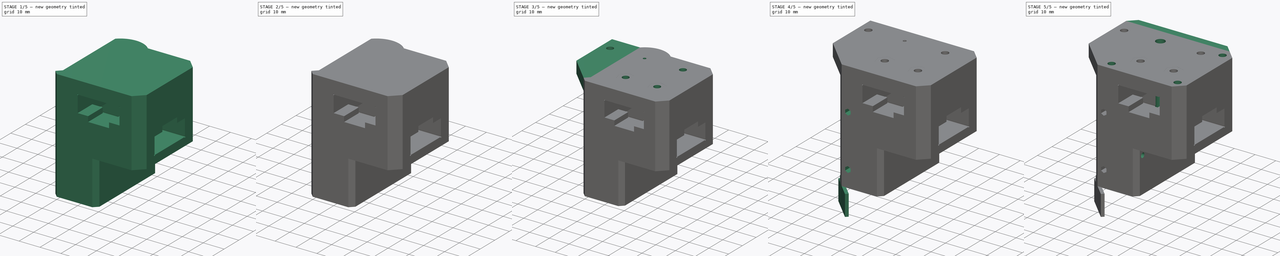
[diagram: build sequence overview — one tinted view per stage of 5, left to right]
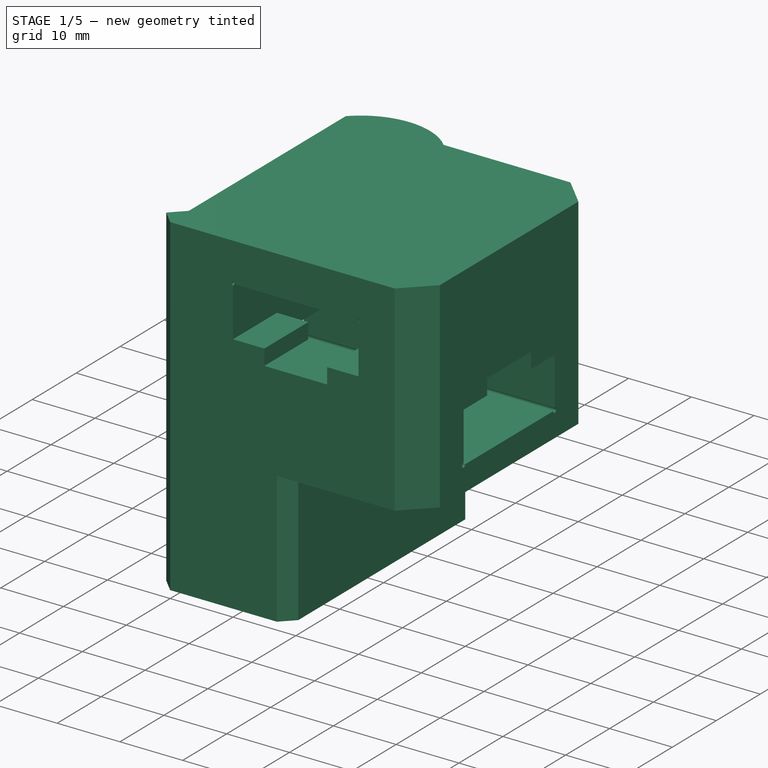
[diagram: stage 1 of 5 — iso view after this stage's code; geometry added in this stage tinted green]
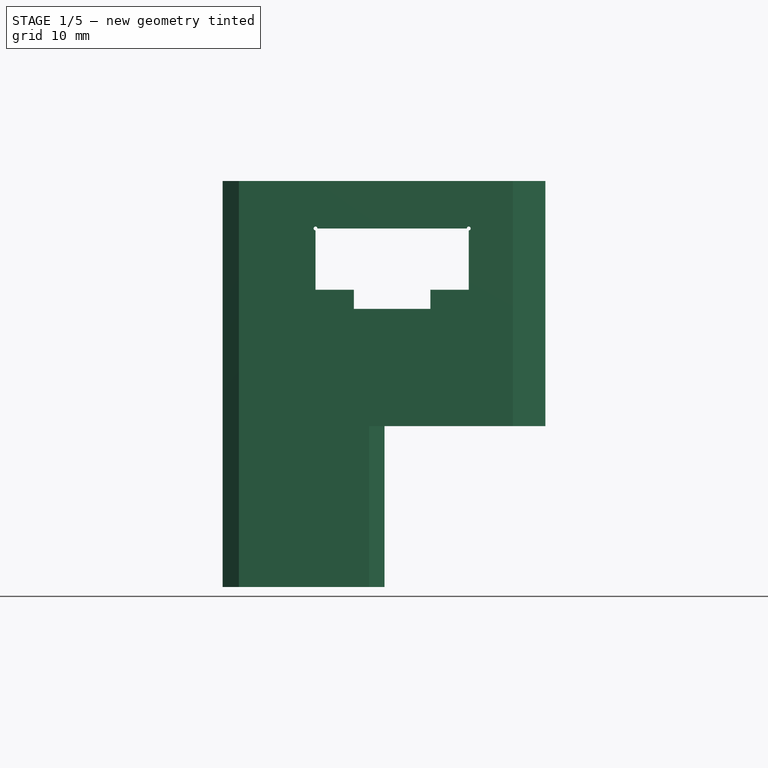
[diagram: stage 1 of 5 — front view after this stage's code; geometry added in this stage tinted green]
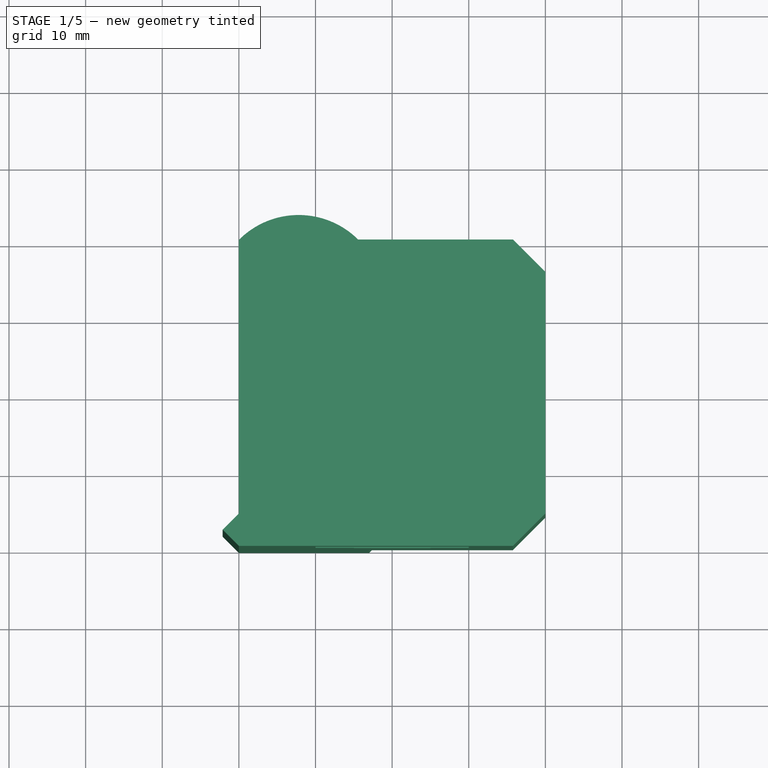
[diagram: stage 1 of 5 — top view after this stage's code; geometry added in this stage tinted green]
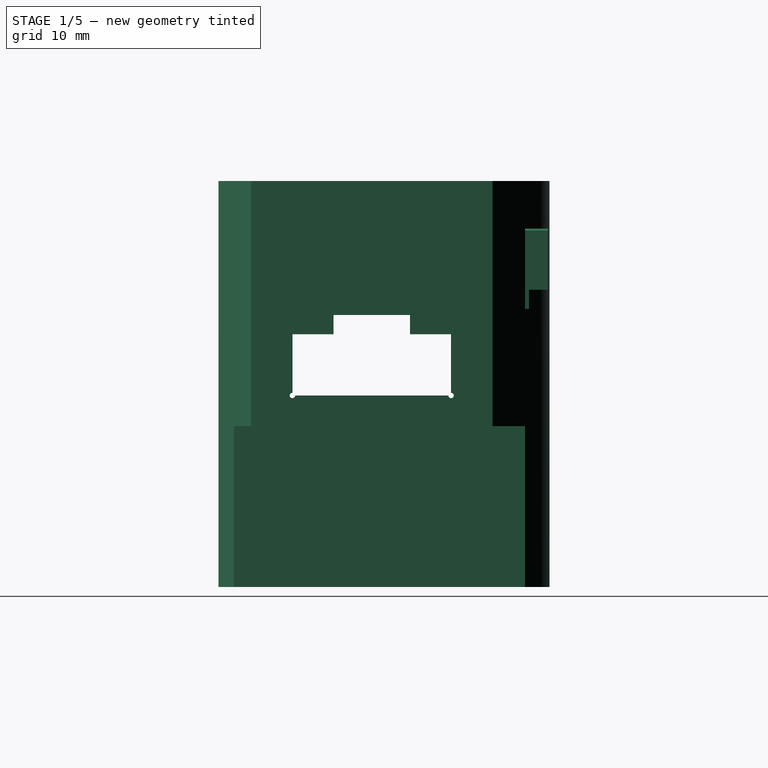
[diagram: stage 1 of 5 — right view after this stage's code; geometry added in this stage tinted green]
FCSTD DOCUMENT  (FreeCAD 0.19R)
Label: ToolHead_NoScreen_4PocketSplit
License: All rights reserved
LicenseURL: http://en.wikipedia.org/wiki/All_rights_reserved
objects: Sketcher::SketchObject×29, PartDesign::Pocket×18, PartDesign::Pad×5, PartDesign::Body×1
note: 76 computed .brp shape members not serialized (recipe doc carries the construction recipe); baked Part::Feature solids carry a one-line shape summary decoded from their .brp

FEATURE [Sketcher::SketchObject] Sketch  label="Body001"
  FullyConstrained = true
  MapMode = 5
  Support = -> [XY_Plane]
  sketch-geometry (11):
    g0: LineSegment StartX=20 StartY=15.7574 StartZ=0 EndX=20 EndY=-15.7574 EndZ=0
    g1: LineSegment StartX=15.7574 StartY=-20 StartZ=0 EndX=-20 EndY=-20 EndZ=0
    g2: LineSegment StartX=-20 StartY=-15.7574 StartZ=0 EndX=-20 EndY=19.9515 EndZ=0
    g3: Circle CenterX=-12.1976 CenterY=12.1976 CenterZ=0 NormalX=0 NormalY=0 NormalZ=1 AngleXU=0 Radius=2.1
    g4: LineSegment StartX=-12.1976 StartY=12.1976 StartZ=0 EndX=0 EndY=0 EndZ=0
    g5: ArcOfCircle CenterX=-12.1976 CenterY=12.1976 CenterZ=0 NormalX=0 NormalY=0 NormalZ=1 AngleXU=0 Radius=11 StartAngle=0.788519 EndAngle=2.35931
    g6: LineSegment StartX=-4.44373 StartY=20 StartZ=0 EndX=15.7574 EndY=20 EndZ=0
    g7: LineSegment StartX=15.7574 StartY=-20 StartZ=0 EndX=20 EndY=-15.7574 EndZ=0
    g8: LineSegment StartX=-20 StartY=-15.7574 StartZ=0 EndX=-22.1213 EndY=-17.8787 EndZ=0
    g9: LineSegment StartX=-22.1213 StartY=-17.8787 StartZ=0 EndX=-20 EndY=-20 EndZ=0
    g10: LineSegment StartX=15.7574 StartY=20 StartZ=0 EndX=20 EndY=15.7574 EndZ=0
  constraints (32):
    c: Horizontal(g1)
    c: Vertical(g0)
    c: Vertical(g2)
    c: Distance(g-1,g3) = 17.25
    c: Coincident(g4,g3)
    c: Coincident(g4,g-1)
    c: Angle(g4) = -0.785398
    c: Diameter(g3) = 4.2
    c: Coincident(g5,g3)
    c: Diameter(g5) = 22
    c: DistanceX(g1) = -20
    c: Coincident(g6,g5)
    c: Horizontal(g6)
    c: Coincident(g5,g2)
    c: Coincident(g7,g1)
    c: Coincident(g7,g0)
    c: Angle(g7) = 0.785398
    c: Distance(g7) = 6
    c: DistanceY(g1) = -20
    c: Coincident(g2,g8)
    c: Coincident(g8,g9)
    c: Coincident(g9,g1)
    c: Angle(g9) = -0.785398
    c: Angle(g8) = -2.35619
    c: Distance(g9) = 3
    c: DistanceX(g2) = -20
    c: Coincident(g10,g6)
    c: Coincident(g10,g0)
    c: Distance(g10) = 6
    c: Angle(g10) = -0.785398
    c: DistanceX(g0) = 20
    c: DistanceY(g6) = 20
FEATURE [PartDesign::Pad] Pad
  Direction = (1,1,1)
  Length = 53
  Length2 = 10
  Profile = -> Sketch
  Reversed = true
  Type = 0
FEATURE [Sketcher::SketchObject] Sketch001  label="RailHole"
  FullyConstrained = true
  MapMode = 5
  Placement = pos=(20,0,0) rot=(0.57735,0.57735,0.57735;2.0944rad)
  Support = -> [Pad]
  sketch-geometry (10):
    g0: LineSegment StartX=-10.35 StartY=-27.65 StartZ=0 EndX=-10.35 EndY=-20 EndZ=0
    g1: LineSegment StartX=5 StartY=-17.5 StartZ=0 EndX=-5 EndY=-17.5 EndZ=0
    g2: LineSegment StartX=10 StartY=-28 StartZ=0 EndX=-10 EndY=-28 EndZ=0
    g3: LineSegment StartX=5 StartY=-17.5 StartZ=0 EndX=5 EndY=-20 EndZ=0
    g4: LineSegment StartX=-5 StartY=-20 StartZ=0 EndX=-5 EndY=-17.5 EndZ=0
    g5: LineSegment StartX=-10.35 StartY=-20 StartZ=0 EndX=-5 EndY=-20 EndZ=0
    g6: LineSegment StartX=5 StartY=-20 StartZ=0 EndX=10.3495 EndY=-20 EndZ=0
    g7: LineSegment StartX=10.3495 StartY=-27.65 StartZ=0 EndX=10.3495 EndY=-20 EndZ=0
    g8: ArcOfCircle CenterX=-10.35 CenterY=-28 CenterZ=0 NormalX=0 NormalY=0 NormalZ=1 AngleXU=0 Radius=0.35 StartAngle=1.5708 EndAngle=6.28319
    g9: ArcOfCircle CenterX=10.35 CenterY=-28 CenterZ=0 NormalX=0 NormalY=0 NormalZ=1 AngleXU=0 Radius=0.35 StartAngle=3.14159 EndAngle=7.85541
  constraints (29):
    c: Vertical(g0)
    c: Symmetric(g1,g1,g-2)
    c: Distance(g1) = 10
    c: Coincident(g1,g3)
    c: Vertical(g3)
    c: Coincident(g4,g1)
    c: Symmetric(g3,g4,g-2)
    c: Distance(g3) = 2.5
    c: Distance(g2) = 20
    c: Coincident(g5,g4)
    c: Horizontal(g5)
    c: Coincident(g3,g6)
    c: Horizontal(g6)
    c: Vertical(g7)
    c: Coincident(g0,g5)
    c: Coincident(g7,g6)
    c: Coincident(g0,g8)
    c: Coincident(g8,g2)
    c: Diameter(g8) = 0.7
    c: DistanceX(g0,g8) = 0
    c: DistanceY(g2,g8) = 0
    c: Coincident(g9,g2)
    c: Coincident(g9,g7)
    c: Diameter(g9) = 0.7
    c: DistanceY(g2,g9) = 0
    c: DistanceX(g7,g9) = 0.0005
    c: Symmetric(g9,g8,g-2)
    c: Distance(g9,g6) = 8
    c: DistanceY(g8) = -28
FEATURE [PartDesign::Pocket] Pocket
  BaseFeature = -> Pad
  Length = 5
  Length2 = 100
  Profile = -> Sketch001
  Type = 1
FEATURE [Sketcher::SketchObject] Sketch008  label="ExtruderHole"
  FullyConstrained = false
  MapMode = 5
  Placement = pos=(0,0,4) rot=(0,0,1;0rad)
  sketch-geometry (2):
    g0: LineSegment StartX=0 StartY=0 StartZ=0 EndX=-54.6242 EndY=54.6242 EndZ=0
    g1: Circle CenterX=-12.1976 CenterY=12.1976 CenterZ=0 NormalX=0 NormalY=0 NormalZ=1 AngleXU=0 Radius=0.75
  constraints (5):
    c: Coincident(g0,g-1)
    c: Angle(g0) = 2.35619
    c: PointOnObject(g1,g0)
    c: Distance(g-1,g1) = 17.25
    c: Diameter(g1) = 1.5
FEATURE [Sketcher::SketchObject] Sketch009  label="reference"
  FullyConstrained = false
  MapMode = 5
  Placement = pos=(0,0,-25) rot=(1,0,0;3.14159rad)
  sketch-geometry (2):
    g0: Circle CenterX=-12.0208 CenterY=-12.0208 CenterZ=0 NormalX=0 NormalY=0 NormalZ=1 AngleXU=0 Radius=10
    g1: LineSegment StartX=0 StartY=0 StartZ=0 EndX=-27.7674 EndY=-27.7674 EndZ=0
  constraints (5):
    c: Diameter(g0) = 20
    c: Coincident(g1,g-1)
    c: Angle(g1) = -2.35619
    c: PointOnObject(g0,g1)
    c: Distance(g0,g1) = 17
FEATURE [Sketcher::SketchObject] Sketch010  label="reference2"
  FullyConstrained = false
  MapMode = 5
  Placement = pos=(0,0,-37) rot=(1,0,0;3.14159rad)
  sketch-geometry (2):
    g0: Circle CenterX=-12.1976 CenterY=-12.1976 CenterZ=0 NormalX=0 NormalY=0 NormalZ=1 AngleXU=0 Radius=8
    g1: LineSegment StartX=0 StartY=0 StartZ=0 EndX=-38.1566 EndY=-38.1566 EndZ=0
  constraints (5):
    c: Diameter(g0) = 16
    c: Coincident(g1,g-1)
    c: Angle(g1) = -2.35619
    c: Distance(g0,g1) = 17.25
    c: PointOnObject(g0,g1)
FEATURE [Sketcher::SketchObject] Sketch021  label="InternalTri"
  FullyConstrained = true
  MapMode = 5
  Placement = pos=(0,-3e-15,-12) rot=(0,0,1;0rad)
  sketch-geometry (4):
    g0: LineSegment StartX=-10 StartY=10 StartZ=0 EndX=10 EndY=10 EndZ=0
    g1: LineSegment StartX=10 StartY=10 StartZ=0 EndX=10 EndY=-10 EndZ=0
    g2: LineSegment StartX=10 StartY=-10 StartZ=0 EndX=-10 EndY=-10 EndZ=0
    g3: LineSegment StartX=-10 StartY=-10 StartZ=0 EndX=-10 EndY=10 EndZ=0
  constraints (11):
    c: Coincident(g0,g1)
    c: Coincident(g1,g2)
    c: Coincident(g2,g3)
    c: Coincident(g3,g0)
    c: Horizontal(g0)
    c: Horizontal(g2)
    c: Vertical(g1)
    c: Vertical(g3)
    c: Symmetric(g1,g0,g-1)
    c: Equal(g1,g0)
    c: Distance(g1) = 20
FEATURE [PartDesign::Pocket] Pocket002
  BaseFeature = -> Pocket
  Length = 10
  Length2 = 2
  Profile = -> Sketch021
  Type = 4
FEATURE [Sketcher::SketchObject] Sketch019  label="RailHole2"
  FullyConstrained = true
  MapMode = 5
  Placement = pos=(0,-20,0) rot=(1,0,0;1.5708rad)
  Support = -> [Pocket002]
  sketch-geometry (10):
    g0: LineSegment StartX=-9.75 StartY=-6.2 StartZ=0 EndX=9.75 EndY=-6.2 EndZ=0
    g1: LineSegment StartX=10 StartY=-14.2 StartZ=0 EndX=5 EndY=-14.2 EndZ=0
    g2: LineSegment StartX=5 StartY=-14.2 StartZ=0 EndX=5 EndY=-16.7 EndZ=0
    g3: LineSegment StartX=5 StartY=-16.7 StartZ=0 EndX=-5 EndY=-16.7 EndZ=0
    g4: LineSegment StartX=-5 StartY=-16.7 StartZ=0 EndX=-5 EndY=-14.2 EndZ=0
    g5: LineSegment StartX=-5 StartY=-14.2 StartZ=0 EndX=-10 EndY=-14.2 EndZ=0
    g6: ArcOfCircle CenterX=10 CenterY=-6.2 CenterZ=0 NormalX=0 NormalY=0 NormalZ=1 AngleXU=0 Radius=0.25 StartAngle=4.71239 EndAngle=9.42478
    g7: ArcOfCircle CenterX=-10 CenterY=-6.2 CenterZ=0 NormalX=0 NormalY=0 NormalZ=1 AngleXU=0 Radius=0.25 StartAngle=-9e-16 EndAngle=4.71239
    g8: LineSegment StartX=-10 StartY=-14.2 StartZ=0 EndX=-10 EndY=-6.45 EndZ=0
    g9: LineSegment StartX=10 StartY=-14.2 StartZ=0 EndX=10 EndY=-6.45 EndZ=0
  constraints (29):
    c: Horizontal(g0)
    c: Horizontal(g1)
    c: Coincident(g1,g2)
    c: Vertical(g2)
    c: Coincident(g2,g3)
    c: Horizontal(g3)
    c: Coincident(g3,g4)
    c: Vertical(g4)
    c: Coincident(g4,g5)
    c: Symmetric(g1,g5,g-2)
    c: Distance(g3) = 10
    c: Symmetric(g4,g1,g-2)
    c: DistanceY(g0) = -6.2
    c: Distance(g2) = 2.5
    c: Coincident(g6,g0)
    c: Coincident(g7,g0)
    c: Distance(g7,g6) = 20
    c: DistanceY(g1,g6) = 8
    c: Coincident(g8,g5)
    c: Vertical(g8)
    c: Coincident(g9,g1)
    c: Coincident(g9,g6)
    c: Vertical(g9)
    c: Coincident(g7,g8)
    c: Symmetric(g6,g7,g-2)
    c: Diameter(g6) = 0.5
    c: Equal(g6,g7)
    c: DistanceX(g7,g7) = 0
    c: DistanceY(g7,g0) = 0
FEATURE [Sketcher::SketchObject] Sketch024  label="hgxLITEholes"
  FullyConstrained = false
  MapMode = 5
  Placement = pos=(0,0,4) rot=(0,0,1;0rad)
  sketch-geometry (5):
    g0: Circle CenterX=7.30241 CenterY=12.1976 CenterZ=0 NormalX=0 NormalY=0 NormalZ=1 AngleXU=0 Radius=1.65
    g1: Circle CenterX=-29.6976 CenterY=12.1976 CenterZ=0 NormalX=0 NormalY=0 NormalZ=1 AngleXU=0 Radius=1.65
    g2: LineSegment StartX=-29.6976 StartY=12.1976 StartZ=0 EndX=7.30241 EndY=12.1976 EndZ=0
    g3: LineSegment StartX=0 StartY=0 StartZ=0 EndX=-27.1729 EndY=27.1729 EndZ=0
    g4: Circle CenterX=-12.1976 CenterY=12.1976 CenterZ=0 NormalX=0 NormalY=0 NormalZ=1 AngleXU=0 Radius=1.0154
  constraints (12):
    c: Diameter(g0) = 3.3
    c: Equal(g0,g1)
    c: Coincident(g2,g1)
    c: Coincident(g2,g0)
    c: Distance(g2) = 37
    c: Coincident(g3,g-1)
    c: Angle(g3) = 2.35619
    c: PointOnObject(g4,g3)
    c: Distance(g-1,g4) = 17.25
    c: Distance(g4,g0) = 19.5
    c: Horizontal(g2)
    c: PointOnObject(g4,g2)
FEATURE [PartDesign::Pocket] Pocket003
  BaseFeature = -> Pocket002
  Length = 5
  Length2 = 100
  Profile = -> Sketch019
  Type = 1
FEATURE [Sketcher::SketchObject] Sketch026  label="BottomSculp"
  FullyConstrained = false
  MapMode = 5
  Placement = pos=(0,0,-53) rot=(1,0,0;3.14159rad)
  Support = -> [Pocket003]
  sketch-geometry (5):
    g0: LineSegment StartX=29.4648 StartY=27.8981 StartZ=0 EndX=28.2209 EndY=-23.4245 EndZ=0
    g1: LineSegment StartX=28.2209 StartY=-23.4245 StartZ=0 EndX=-1.00001 EndY=-23.4245 EndZ=0
    g2: LineSegment StartX=-1.00001 StartY=-23.4245 StartZ=0 EndX=-1 EndY=18 EndZ=0
    g3: LineSegment StartX=-1 StartY=18 StartZ=0 EndX=-14.2089 EndY=31.2089 EndZ=0
    g4: LineSegment StartX=-14.2089 StartY=31.2089 StartZ=0 EndX=29.4648 EndY=27.8981 EndZ=0
  constraints (11):
    c: Coincident(g0,g1)
    c: Horizontal(g1)
    c: Coincident(g1,g2)
    c: Angle(g2) = 1.5708
    c: Coincident(g2,g3)
    c: Angle(g3) = 2.35619
    c: Coincident(g4,g3)
    c: Coincident(g4,g0)
    c: DistanceY(g2) = 18
    c: DistanceX(g2) = -1
    c: Angle(g3) = 2.35619
FEATURE [PartDesign::Pocket] Pocket004
  BaseFeature = -> Pocket003
  Length = 21
  Length2 = 100
  Profile = -> Sketch026
  Type = 0
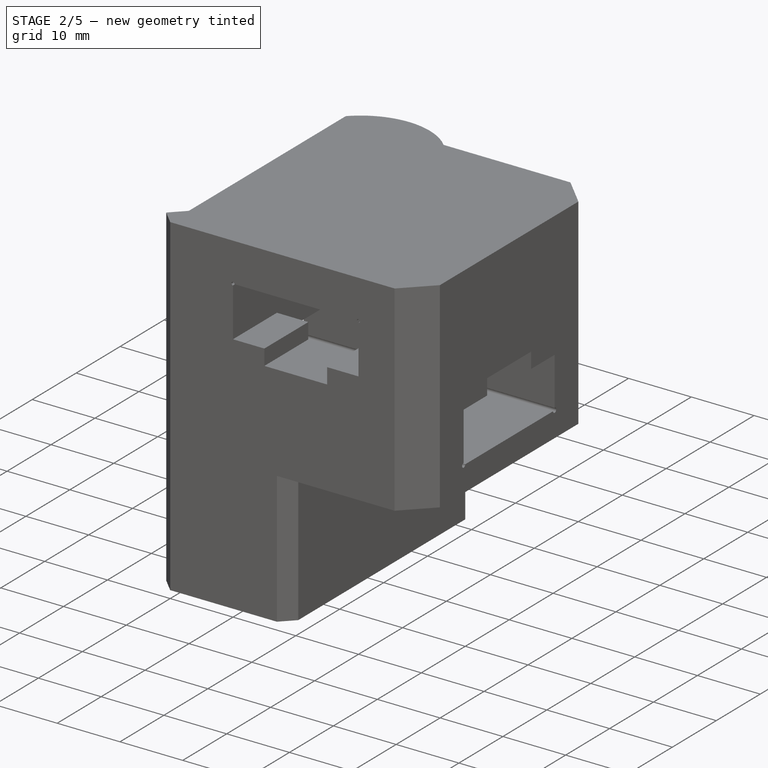
[diagram: stage 2 of 5 — iso view after this stage's code; geometry added in this stage tinted green]
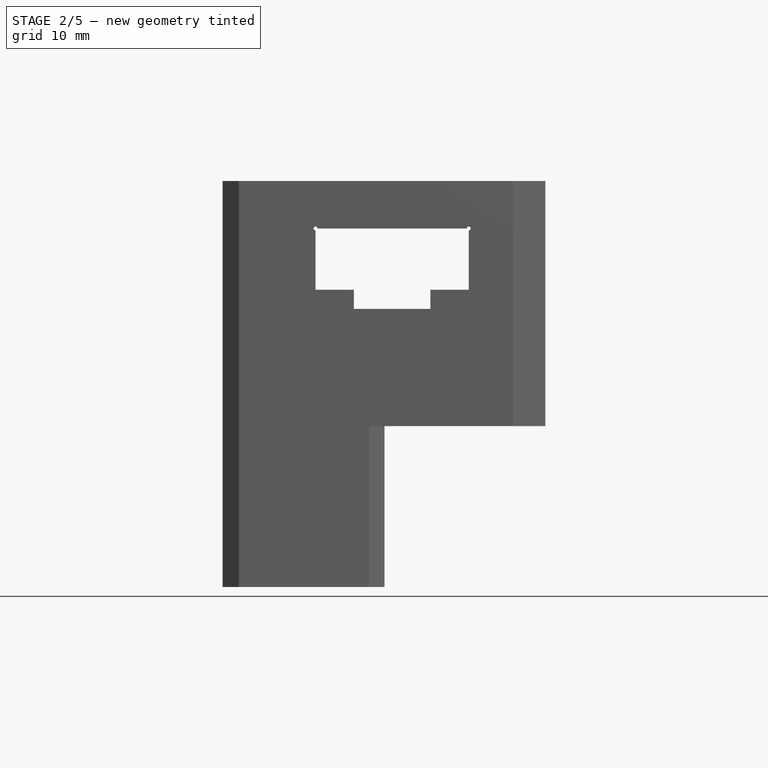
[diagram: stage 2 of 5 — front view after this stage's code; geometry added in this stage tinted green]
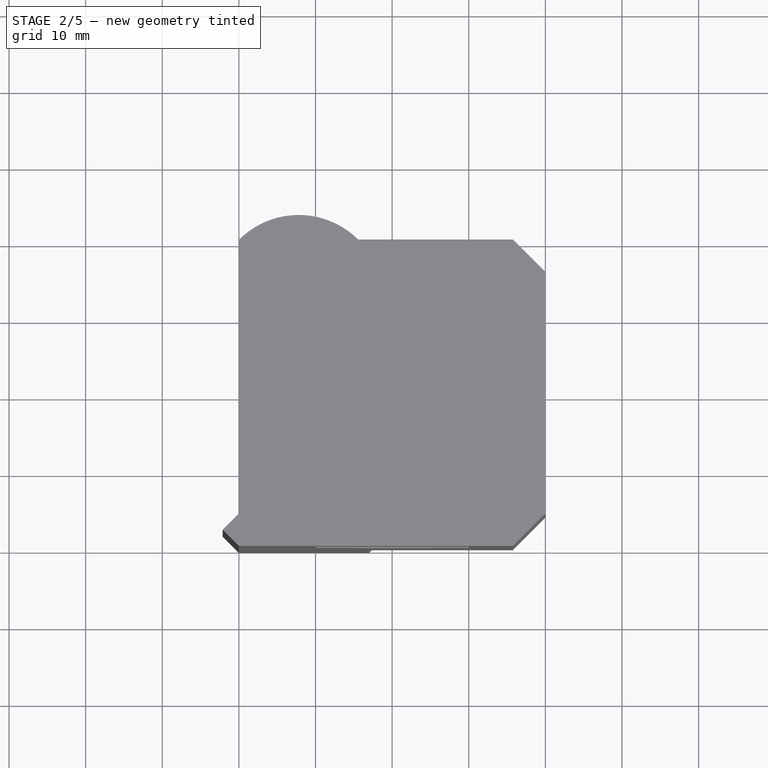
[diagram: stage 2 of 5 — top view after this stage's code; geometry added in this stage tinted green]
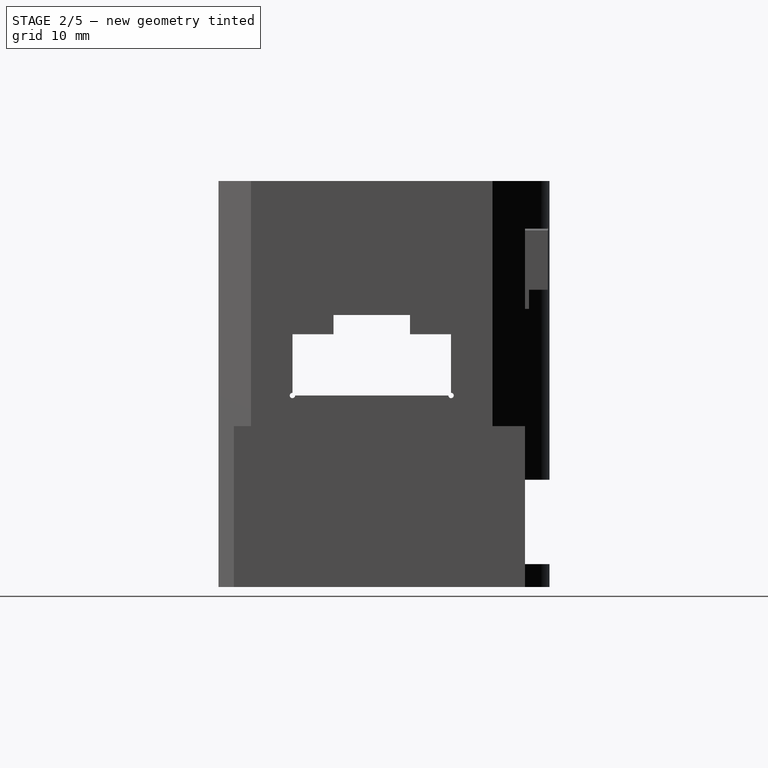
[diagram: stage 2 of 5 — right view after this stage's code; geometry added in this stage tinted green]
FEATURE [Sketcher::SketchObject] Sketch004  label="Yboltpattern"
  FullyConstrained = true
  MapMode = 5
  Placement = pos=(0,0,-32) rot=(1,0,0;3.14159rad)
  Support = -> [Pocket004]
  sketch-geometry (8):
    g0: Circle CenterX=-8 CenterY=7.5 CenterZ=0 NormalX=0 NormalY=0 NormalZ=1 AngleXU=0 Radius=1.75
    g1: Circle CenterX=8 CenterY=7.5 CenterZ=0 NormalX=0 NormalY=0 NormalZ=1 AngleXU=0 Radius=1.75
    g2: Circle CenterX=-8 CenterY=-7.5 CenterZ=0 NormalX=0 NormalY=0 NormalZ=1 AngleXU=0 Radius=1.75
    g3: Circle CenterX=8 CenterY=-7.5 CenterZ=0 NormalX=0 NormalY=0 NormalZ=1 AngleXU=0 Radius=1.75
    g4: LineSegment StartX=-8 StartY=7.5 StartZ=0 EndX=8 EndY=7.5 EndZ=0
    g5: LineSegment StartX=8 StartY=7.5 StartZ=0 EndX=8 EndY=-7.5 EndZ=0
    g6: LineSegment StartX=8 StartY=-7.5 StartZ=0 EndX=-8 EndY=-7.5 EndZ=0
    g7: LineSegment StartX=-8 StartY=-7.5 StartZ=0 EndX=-8 EndY=7.5 EndZ=0
  constraints (18):
    c: Diameter(g0) = 3.5
    c: Equal(g0,g1)
    c: Equal(g0,g2)
    c: Equal(g0,g3)
    c: Distance(g2,g0) = 15
    c: Distance(g3,g2) = 16
    c: Coincident(g4,g0)
    c: Coincident(g4,g1)
    c: Coincident(g4,g5)
    c: Coincident(g5,g3)
    c: Coincident(g5,g6)
    c: Coincident(g6,g2)
    c: Coincident(g6,g7)
    c: Coincident(g7,g4)
    c: Equal(g5,g7)
    c: Equal(g4,g6)
    c: Symmetric(g1,g2,g-1)
    c: Symmetric(g0,g1,g-2)
FEATURE [Sketcher::SketchObject] Sketch022  label="VoronHoleRelif"
  FullyConstrained = true
  MapMode = 5
  Placement = pos=(0,0,-28) rot=(0,0,1;0rad)
  Support = -> [Pocket004]
  sketch-geometry (11):
    g0: ArcOfCircle CenterX=-17.8884 CenterY=6.52425 CenterZ=0 NormalX=0 NormalY=0 NormalZ=1 AngleXU=0 Radius=2.4 StartAngle=4.71239 EndAngle=6.28319
    g1: ArcOfCircle CenterX=-6.58192 CenterY=17.8307 CenterZ=0 NormalX=0 NormalY=0 NormalZ=1 AngleXU=0 Radius=2.4 StartAngle=3.14159 EndAngle=6.28319
    g2: LineSegment StartX=-22.2684 StartY=4.12425 StartZ=0 EndX=-17.8884 EndY=4.12425 EndZ=0
    g3: LineSegment StartX=-22.2684 StartY=23.8307 StartZ=0 EndX=-4.18192 EndY=23.8307 EndZ=0
    g4: LineSegment StartX=-4.18192 StartY=23.8307 StartZ=0 EndX=-4.18192 EndY=17.8307 EndZ=0
    g5: LineSegment StartX=-22.2684 StartY=4.12425 StartZ=0 EndX=-22.2684 EndY=23.8307 EndZ=0
    g6: ArcOfCircle CenterX=-17.8172 CenterY=17.8307 CenterZ=0 NormalX=0 NormalY=0 NormalZ=1 AngleXU=0 Radius=2.4 StartAngle=4.71239 EndAngle=6.28319
    g7: LineSegment StartX=-15.4172 StartY=17.8307 StartZ=0 EndX=-8.98192 EndY=17.8307 EndZ=0
    g8: LineSegment StartX=-17.8172 StartY=9.85307 StartZ=0 EndX=-15.4884 EndY=7.52425 EndZ=0
    g9: LineSegment StartX=-15.4884 StartY=6.52425 StartZ=0 EndX=-15.4884 EndY=7.52425 EndZ=0
    g10: LineSegment StartX=-17.8172 StartY=9.85307 StartZ=0 EndX=-17.8172 EndY=15.4307 EndZ=0
  constraints (33):
    c: Horizontal(g2)
    c: Coincident(g3,g4)
    c: Tangent(g4,g1) = 1.5708
    c: Tangent(g2,g0) = -1.5708
    c: Diameter(g0) = 4.8
    c: Equal(g0,g1)
    c: Vertical(g4)
    c: Horizontal(g3)
    c: Coincident(g5,g2)
    c: Coincident(g5,g3)
    c: Vertical(g5)
    c: Distance(g2) = 4.38
    c: Distance(g4) = 6
    c: DistanceX(g1) = -6.58192
    c: DistanceY(g1) = 17.8307
    c: DistanceX(g0) = -17.8884
    c: DistanceY(g0) = 6.52425
    c: Coincident(g7,g6)
    c: Coincident(g7,g1)
    c: Horizontal(g7)
    c: Perpendicular(g1,g7)
    c: Diameter(g6) = 4.8
    c: Perpendicular(g6,g7)
    c: Angle(g8) = -0.785398
    c: Vertical(g9)
    c: Tangent(g9,g0) = -1.5708
    c: Distance(g9) = 1
    c: Coincident(g8,g9)
    c: Coincident(g10,g8)
    c: Coincident(g10,g6)
    c: Vertical(g10)
    c: Perpendicular(g6,g10)
    c: DistanceX(g6) = -17.8172
FEATURE [PartDesign::Pocket] Pocket005
  BaseFeature = -> Pocket004
  Length = 22
  Length2 = -11
  Profile = -> Sketch022
  Type = 4
FEATURE [Sketcher::SketchObject] Sketch017  label="VoronHoles3"
  FullyConstrained = true
  MapMode = 5
  Placement = pos=(0,0,-50) rot=(0,0,1;0rad)
  Support = -> [Pocket005]
  sketch-geometry (10):
    g0: Circle CenterX=-6.54074 CenterY=17.8544 CenterZ=0 NormalX=0 NormalY=0 NormalZ=1 AngleXU=0 Radius=1.375
    g1: Circle CenterX=-17.8544 CenterY=6.54074 CenterZ=0 NormalX=0 NormalY=0 NormalZ=1 AngleXU=0 Radius=1.375
    g2: Circle CenterX=-6.54074 CenterY=6.54074 CenterZ=0 NormalX=0 NormalY=0 NormalZ=1 AngleXU=0 Radius=1.375
    g3: Circle CenterX=-17.8544 CenterY=17.8544 CenterZ=0 NormalX=0 NormalY=0 NormalZ=1 AngleXU=0 Radius=1.375
    g4: LineSegment StartX=-6.54074 StartY=17.8544 StartZ=0 EndX=-6.54074 EndY=6.54074 EndZ=0
    g5: LineSegment StartX=-6.54074 StartY=6.54074 StartZ=0 EndX=-17.8544 EndY=6.54074 EndZ=0
    g6: LineSegment StartX=-17.8544 StartY=6.54074 StartZ=0 EndX=-17.8544 EndY=17.8544 EndZ=0
    g7: LineSegment StartX=-17.8544 StartY=17.8544 StartZ=0 EndX=-6.54074 EndY=17.8544 EndZ=0
    g8: LineSegment StartX=0 StartY=0 StartZ=0 EndX=-37.1726 EndY=37.1726 EndZ=0
    g9: Circle CenterX=-12.1976 CenterY=12.1976 CenterZ=0 NormalX=0 NormalY=0 NormalZ=1 AngleXU=0 Radius=0.77
  constraints (25):
    c: Coincident(g4,g0)
    c: Coincident(g4,g2)
    c: Coincident(g4,g5)
    c: Coincident(g5,g1)
    c: Coincident(g5,g6)
    c: Coincident(g6,g3)
    c: Coincident(g6,g7)
    c: Coincident(g7,g4)
    c: Equal(g4,g7)
    c: Equal(g7,g6)
    c: Equal(g6,g5)
    c: Coincident(g8,g-1)
    c: PointOnObject(g9,g8)
    c: Distance(g-1,g9) = 17.25
    c: Diameter(g1) = 2.75
    c: Equal(g1,g3)
    c: Equal(g1,g0)
    c: Equal(g1,g2)
    c: Symmetric(g0,g1,g9)
    c: Distance(g2,g3) = 16
    c: Angle(g8) = 2.35619
    c: PointOnObject(g2,g8)
    c: Perpendicular(g7,g4)
    c: Distance(g8) = 52.57
    c: Diameter(g9) = 1.54
FEATURE [PartDesign::Pocket] Pocket006
  BaseFeature = -> Pocket005
  Length = 5
  Length2 = 100
  Profile = -> Sketch017
  Type = 1
FEATURE [Sketcher::SketchObject] Sketch025  label="FanDuctMountHole"
  FullyConstrained = true
  MapMode = 5
  Placement = pos=(0,0,-53) rot=(1,0,0;3.14159rad)
  Support = -> [Pocket006]
  sketch-geometry (1):
    g0: Circle CenterX=-12.2 CenterY=7.8 CenterZ=0 NormalX=0 NormalY=0 NormalZ=1 AngleXU=0 Radius=1.4
  constraints (3):
    c: Diameter(g0) = 2.8
    c: DistanceX(g0) = -12.2
    c: DistanceY(g0) = 7.8
FEATURE [PartDesign::Pocket] Pocket007
  BaseFeature = -> Pocket006
  Length = 10
  Length2 = 100
  Profile = -> Sketch025
  Type = 0
FEATURE [PartDesign::Pocket] Pocket008
  BaseFeature = -> Pocket007
  Length = 9
  Length2 = 100
  Profile = -> Sketch004
  Type = 0
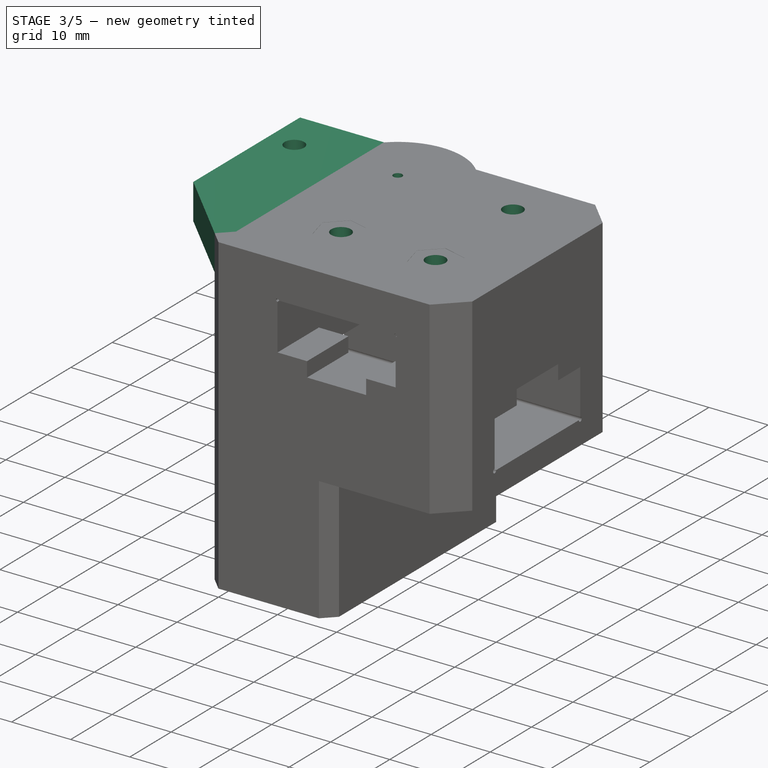
[diagram: stage 3 of 5 — iso view after this stage's code; geometry added in this stage tinted green]
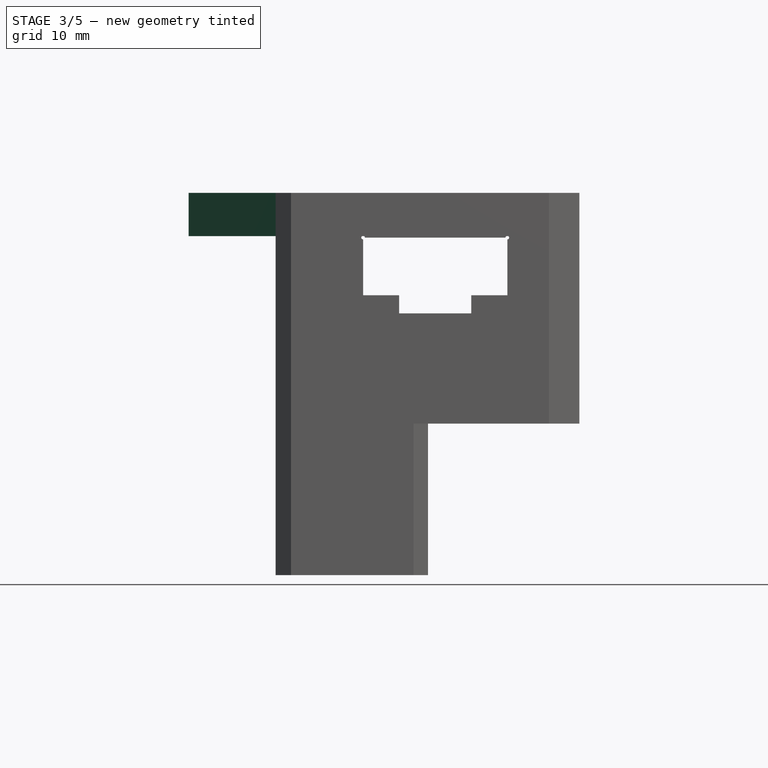
[diagram: stage 3 of 5 — front view after this stage's code; geometry added in this stage tinted green]
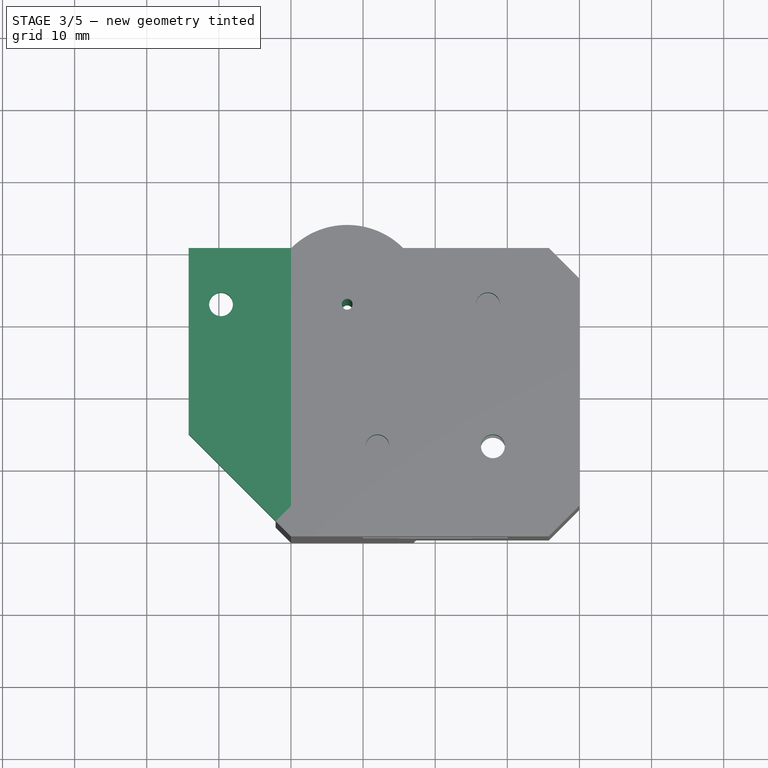
[diagram: stage 3 of 5 — top view after this stage's code; geometry added in this stage tinted green]
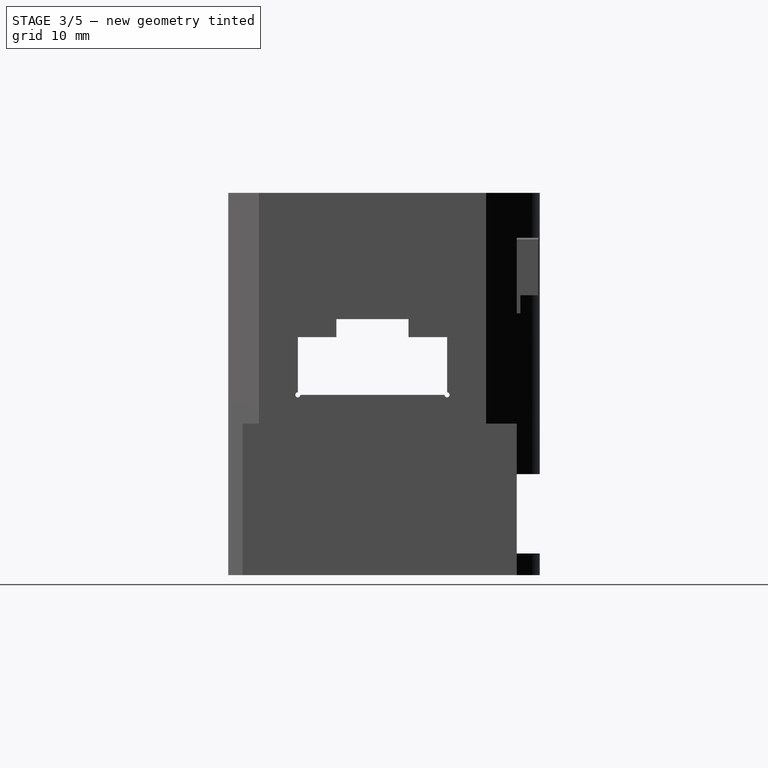
[diagram: stage 3 of 5 — right view after this stage's code; geometry added in this stage tinted green]
FEATURE [Sketcher::SketchObject] Sketch007  label="ExtruderPlatform"
  ExternalGeometry = -> [Pad]
  FullyConstrained = false
  MapMode = 5
  Support = -> [Pocket008]
  sketch-geometry (12):
    g0: LineSegment StartX=-20 StartY=-20 StartZ=0 EndX=15.7574 EndY=-20 EndZ=0
    g1: LineSegment StartX=0 StartY=0 StartZ=0 EndX=-70.7107 EndY=70.7107 EndZ=0
    g2: Circle CenterX=-12.1976 CenterY=12.1976 CenterZ=0 NormalX=0 NormalY=0 NormalZ=1 AngleXU=0 Radius=2.125
    g3: LineSegment StartX=15.7574 StartY=-20 StartZ=0 EndX=20 EndY=-15.7574 EndZ=0
    g4: LineSegment StartX=20 StartY=-15.7574 StartZ=0 EndX=20 EndY=15.7574 EndZ=0
    g5: LineSegment StartX=20 StartY=15.7574 StartZ=0 EndX=15.7574 EndY=20 EndZ=0
    g6: LineSegment StartX=-20 StartY=-20 StartZ=0 EndX=-34.1976 EndY=-5.80241 EndZ=0
    g7: LineSegment StartX=-12.1976 StartY=-100 StartZ=0 EndX=-12.1976 EndY=100 EndZ=0
    g8: LineSegment StartX=-34.1976 StartY=-5.80241 StartZ=0 EndX=-34.1976 EndY=20 EndZ=0
    g9: LineSegment StartX=-34.1976 StartY=20 StartZ=0 EndX=15.7574 EndY=20 EndZ=0
    g10: Circle CenterX=-29.6976 CenterY=12.1976 CenterZ=0 NormalX=0 NormalY=0 NormalZ=1 AngleXU=0 Radius=1.4
    g11: Circle CenterX=7.30241 CenterY=11.9057 CenterZ=0 NormalX=0 NormalY=0 NormalZ=1 AngleXU=0 Radius=1.4
  constraints (35):
    c: Coincident(g1,g-1)
    c: Angle(g1) = 2.35619
    c: Diameter(g2) = 4.25
    c: PointOnObject(g2,g1)
    c: Distance(g-1,g2) = 17.25
    c: Coincident(g0,g3)
    c: Coincident(g3,g4)
    c: Coincident(g6,g0)
    c: Angle(g6) = 2.35619
    c: Coincident(g5,g4)
    c: Distance(g1) = 100
    c: PointOnObject(g2,g7)
    c: DistanceX(g0,g0) = -35.7574
    c: DistanceY(g0,g0) = 0
    c: DistanceX(g3,g0) = -40
    c: DistanceY(g3,g0) = -4.24264
    c: DistanceX(g4) = 20
    c: DistanceY(g4) = 15.7574
    c: DistanceX(g3) = 20
    c: DistanceY(g3) = -15.7574
    c: Coincident(g8,g6)
    c: Vertical(g8)
    c: Horizontal(g9)
    c: Coincident(g5,g9)
    c: Distance(g8,g7) = 22
    c: DistanceX(g5) = 15.7574
    c: DistanceY(g5) = 20
    c: Symmetric(g7,g7,g-1)
    c: Distance(g7) = 200
    c: DistanceX(g10,g2) = 17.5
    c: DistanceX(g2,g11) = 19.5
    c: Diameter(g10) = 2.8
    c: Equal(g10,g11)
    c: DistanceY(g10,g2) = 0
    c: Coincident(g9,g8)
FEATURE [PartDesign::Pad] Pad001
  BaseFeature = -> Pocket008
  Direction = (1,1,1)
  Length = 6
  Length2 = 100
  Profile = -> Sketch007
  Reversed = true
  Type = 0
FEATURE [PartDesign::Pocket] Pocket009
  BaseFeature = -> Pad001
  Length = 11
  Length2 = 100
  Profile = -> Sketch024
  Type = 0
FEATURE [PartDesign::Pocket] Pocket010
  BaseFeature = -> Pocket009
  Length = 5
  Length2 = 100
  Profile = -> Sketch008
  Type = 1
FEATURE [Sketcher::SketchObject] Sketch003  label="Xboltpattern"
  FullyConstrained = true
  MapMode = 5
  Support = -> [Pocket010]
  sketch-geometry (8):
    g0: Circle CenterX=-8 CenterY=7.5 CenterZ=0 NormalX=0 NormalY=0 NormalZ=1 AngleXU=0 Radius=1.65
    g1: Circle CenterX=8 CenterY=7.5 CenterZ=0 NormalX=0 NormalY=0 NormalZ=1 AngleXU=0 Radius=1.65
    g2: Circle CenterX=-8 CenterY=-7.5 CenterZ=0 NormalX=0 NormalY=0 NormalZ=1 AngleXU=0 Radius=1.65
    g3: Circle CenterX=8 CenterY=-7.5 CenterZ=0 NormalX=0 NormalY=0 NormalZ=1 AngleXU=0 Radius=1.65
    g4: LineSegment StartX=-8 StartY=7.5 StartZ=0 EndX=8 EndY=7.5 EndZ=0
    g5: LineSegment StartX=8 StartY=7.5 StartZ=0 EndX=8 EndY=-7.5 EndZ=0
    g6: LineSegment StartX=8 StartY=-7.5 StartZ=0 EndX=-8 EndY=-7.5 EndZ=0
    g7: LineSegment StartX=-8 StartY=-7.5 StartZ=0 EndX=-8 EndY=7.5 EndZ=0
  constraints (19):
    c: Diameter(g0) = 3.3
    c: Equal(g0,g1)
    c: Equal(g0,g2)
    c: Equal(g0,g3)
    c: Distance(g0,g1) = 16
    c: Distance(g1,g3) = 15
    c: Coincident(g4,g0)
    c: Coincident(g4,g1)
    c: Horizontal(g4)
    c: Coincident(g4,g5)
    c: Coincident(g5,g3)
    c: Vertical(g5)
    c: Coincident(g5,g6)
    c: Coincident(g6,g2)
    c: Coincident(g6,g7)
    c: Coincident(g7,g4)
    c: Symmetric(g2,g1,g-1)
    c: Equal(g7,g5)
    c: Equal(g6,g4)
FEATURE [Sketcher::SketchObject] Sketch029  label="Adhesion"
  FullyConstrained = false
  MapMode = 5
  Placement = pos=(0,0,-53) rot=(1,0,0;3.14159rad)
  sketch-geometry (4):
    g0: LineSegment StartX=-13.636 StartY=24.2426 StartZ=0 EndX=-24.2426 EndY=13.636 EndZ=0
    g1: LineSegment StartX=-24.2426 StartY=13.636 StartZ=0 EndX=-25.3033 EndY=14.6967 EndZ=0
    g2: LineSegment StartX=-25.3033 StartY=14.6967 StartZ=0 EndX=-14.6967 EndY=25.3033 EndZ=0
    g3: LineSegment StartX=-14.6967 StartY=25.3033 StartZ=0 EndX=-13.636 EndY=24.2426 EndZ=0
  constraints (10):
    c: Coincident(g0,g1)
    c: Coincident(g1,g2)
    c: Coincident(g2,g3)
    c: Coincident(g3,g0)
    c: Angle(g2) = 0.785398
    c: Distance(g2) = 15
    c: Distance(g1) = 1.5
    c: Distance(g3) = 1.5
    c: Perpendicular(g2,g3)
    c: Perpendicular(g2,g1)
FEATURE [Sketcher::SketchObject] Sketch033  label="WireMgmnt"
  FullyConstrained = true
  MapMode = 5
  Placement = pos=(0,-20,0) rot=(1,0,0;1.5708rad)
  sketch-geometry (14):
    g0: LineSegment StartX=-15.7 StartY=-20.7506 StartZ=0 EndX=-15.7 EndY=-19.2494 EndZ=0
    g1: LineSegment StartX=-15.7 StartY=-19.2494 StartZ=0 EndX=-17 EndY=-18.4989 EndZ=0
    g2: LineSegment StartX=-17 StartY=-18.4989 StartZ=0 EndX=-18.3 EndY=-19.2494 EndZ=0
    g3: LineSegment StartX=-18.3 StartY=-19.2494 StartZ=0 EndX=-18.3 EndY=-20.7506 EndZ=0
    g4: LineSegment StartX=-18.3 StartY=-20.7506 StartZ=0 EndX=-17 EndY=-21.5011 EndZ=0
    g5: LineSegment StartX=-17 StartY=-21.5011 StartZ=0 EndX=-15.7 EndY=-20.7506 EndZ=0
    g6: Circle CenterX=-17 CenterY=-20 CenterZ=0 NormalX=0 NormalY=0 NormalZ=1 AngleXU=0 Radius=1.50111
    g7: LineSegment StartX=-15.7 StartY=-44.2494 StartZ=0 EndX=-17 EndY=-43.4989 EndZ=0
    g8: LineSegment StartX=-17 StartY=-43.4989 StartZ=0 EndX=-18.3 EndY=-44.2494 EndZ=0
    g9: LineSegment StartX=-18.3 StartY=-44.2494 StartZ=0 EndX=-18.3 EndY=-45.7506 EndZ=0
    g10: LineSegment StartX=-18.3 StartY=-45.7506 StartZ=0 EndX=-17 EndY=-46.5011 EndZ=0
    g11: LineSegment StartX=-17 StartY=-46.5011 StartZ=0 EndX=-15.7 EndY=-45.7506 EndZ=0
    g12: LineSegment StartX=-15.7 StartY=-45.7506 StartZ=0 EndX=-15.7 EndY=-44.2494 EndZ=0
    g13: Circle CenterX=-17 CenterY=-45 CenterZ=0 NormalX=0 NormalY=0 NormalZ=1 AngleXU=0 Radius=1.50111
  constraints (34):
    c: Coincident(g0,g1)
    c: Coincident(g1,g2)
    c: Coincident(g2,g3)
    c: Coincident(g3,g4)
    c: Coincident(g4,g5)
    c: Coincident(g5,g0)
    c: Equal(g0, g1-g5) x5
    c: PointOnObject(g0,g6)
    c: PointOnObject(g1,g6)
    c: PointOnObject(g2,g6)
    c: PointOnObject(g3,g6)
    c: PointOnObject(g4,g6)
    c: PointOnObject(g5,g6)
    c: Coincident(g7,g8)
    c: Coincident(g8,g9)
    c: Coincident(g9,g10)
    c: Coincident(g10,g11)
    c: Coincident(g11,g12)
    c: Coincident(g12,g7)
    c: Equal(g7, g8-g12) x5
    c: PointOnObject(g7,g13)
    c: PointOnObject(g8,g13)
    c: PointOnObject(g9,g13)
    c: PointOnObject(g10,g13)
    c: PointOnObject(g11,g13)
    c: PointOnObject(g12,g13)
    c: DistanceX(g13) = -17
    c: Distance(g10,g7) = 2.6
    c: Vertical(g9)
    c: DistanceY(g13) = -45
    c: Distance(g3,g0) = 2.6
    c: DistanceY(g6) = -20
    c: Vertical(g3)
    c: DistanceX(g6) = -17
FEATURE [Sketcher::SketchObject] Sketch035  label="Bottom Reinforce"
  FullyConstrained = false
  MapMode = 5
  Placement = pos=(0,0,-53) rot=(1,0,0;3.14159rad)
  sketch-geometry (4):
    g0: LineSegment StartX=-22.779 StartY=17.221 StartZ=0 EndX=-22.779 EndY=-17.1725 EndZ=0
    g1: LineSegment StartX=-22.779 StartY=-17.1725 StartZ=0 EndX=-20 EndY=-19.9515 EndZ=0
    g2: LineSegment StartX=-20 StartY=-19.9515 StartZ=0 EndX=-20 EndY=20 EndZ=0
    g3: LineSegment StartX=-20 StartY=20 StartZ=0 EndX=-22.779 EndY=17.221 EndZ=0
  constraints (9):
    c: Vertical(g0)
    c: Coincident(g0,g1)
    c: Coincident(g1,g2)
    c: Vertical(g2)
    c: Coincident(g2,g3)
    c: Coincident(g3,g0)
    c: Angle(g1) = -0.785398
    c: DistanceY(g2) = 20
    c: Angle(g3) = -2.35619
FEATURE [Sketcher::SketchObject] Sketch037  label="BumpTrim"
  FullyConstrained = false
  MapMode = 5
  sketch-geometry (4):
    g0: LineSegment StartX=-26.2848 StartY=31.2083 StartZ=0 EndX=-1.26106 EndY=31.2083 EndZ=0
    g1: LineSegment StartX=-1.26106 StartY=31.2083 StartZ=0 EndX=-1.26106 EndY=20 EndZ=0
    g2: LineSegment StartX=-1.26106 StartY=20 StartZ=0 EndX=-26.2848 EndY=20 EndZ=0
    g3: LineSegment StartX=-26.2848 StartY=20 StartZ=0 EndX=-26.2848 EndY=31.2083 EndZ=0
  constraints (9):
    c: Coincident(g0,g1)
    c: Coincident(g1,g2)
    c: Coincident(g2,g3)
    c: Coincident(g3,g0)
    c: Horizontal(g0)
    c: Horizontal(g2)
    c: Vertical(g1)
    c: Vertical(g3)
    c: DistanceY(g1) = 20
FEATURE [PartDesign::Pocket] Pocket011
  BaseFeature = -> Pocket010
  Length = 10
  Length2 = 100
  Profile = -> Sketch003
  Type = 0
FEATURE [Sketcher::SketchObject] Sketch036  label="countersink"
  FullyConstrained = true
  MapMode = 5
  Support = -> [Pocket011]
  sketch-geometry (14):
    g0: LineSegment StartX=11.9037 StartY=-8.546 StartZ=0 EndX=10.8577 EndY=-4.64226 EndZ=0
    g1: LineSegment StartX=10.8577 StartY=-4.64226 StartZ=0 EndX=6.954 EndY=-3.59626 EndZ=0
    g2: LineSegment StartX=6.954 StartY=-3.59626 StartZ=0 EndX=4.09626 EndY=-6.454 EndZ=0
    g3: LineSegment StartX=4.09626 StartY=-6.454 StartZ=0 EndX=5.14226 EndY=-10.3577 EndZ=0
    g4: LineSegment StartX=5.14226 StartY=-10.3577 StartZ=0 EndX=9.046 EndY=-11.4037 EndZ=0
    g5: LineSegment StartX=9.046 StartY=-11.4037 StartZ=0 EndX=11.9037 EndY=-8.546 EndZ=0
    g6: Circle CenterX=8 CenterY=-7.5 CenterZ=0 NormalX=0 NormalY=0 NormalZ=1 AngleXU=0 Radius=4.04145
    g7: LineSegment StartX=-5.14226 StartY=-4.64226 StartZ=0 EndX=-9.046 EndY=-3.59626 EndZ=0
    g8: LineSegment StartX=-9.046 StartY=-3.59626 StartZ=0 EndX=-11.9037 EndY=-6.454 EndZ=0
    g9: LineSegment StartX=-11.9037 StartY=-6.454 StartZ=0 EndX=-10.8577 EndY=-10.3577 EndZ=0
    g10: LineSegment StartX=-10.8577 StartY=-10.3577 StartZ=0 EndX=-6.954 EndY=-11.4037 EndZ=0
    g11: LineSegment StartX=-6.954 StartY=-11.4037 StartZ=0 EndX=-4.09626 EndY=-8.546 EndZ=0
    g12: LineSegment StartX=-4.09626 StartY=-8.546 StartZ=0 EndX=-5.14226 EndY=-4.64226 EndZ=0
    g13: Circle CenterX=-8 CenterY=-7.5 CenterZ=0 NormalX=0 NormalY=0 NormalZ=1 AngleXU=0 Radius=4.04145
  constraints (34):
    c: Coincident(g0,g1)
    c: Coincident(g1,g2)
    c: Coincident(g2,g3)
    c: Coincident(g3,g4)
    c: Coincident(g4,g5)
    c: Coincident(g5,g0)
    c: Equal(g0, g1-g5) x5
    c: PointOnObject(g0,g6)
    c: PointOnObject(g1,g6)
    c: PointOnObject(g2,g6)
    c: PointOnObject(g3,g6)
    c: PointOnObject(g4,g6)
    c: PointOnObject(g5,g6)
    c: Coincident(g7,g8)
    c: Coincident(g8,g9)
    c: Coincident(g9,g10)
    c: Coincident(g10,g11)
    c: Coincident(g11,g12)
    c: Coincident(g12,g7)
    c: Equal(g7, g8-g12) x5
    c: PointOnObject(g7,g13)
    c: PointOnObject(g8,g13)
    c: PointOnObject(g9,g13)
    c: PointOnObject(g10,g13)
    c: PointOnObject(g11,g13)
    c: PointOnObject(g12,g13)
    c: Angle(g11) = 0.785398
    c: Angle(g5) = 0.785398
    c: Distance(g0,g2) = 7
    c: Distance(g7,g8) = 7
    c: DistanceX(g6) = 8
    c: DistanceY(g6) = -7.5
    c: DistanceY(g13) = -7.5
    c: DistanceX(g13) = -8
FEATURE [PartDesign::Pocket] Pocket012
  BaseFeature = -> Pocket011
  Length = 0.02
  Length2 = 100
  Profile = -> Sketch036
  Type = 0
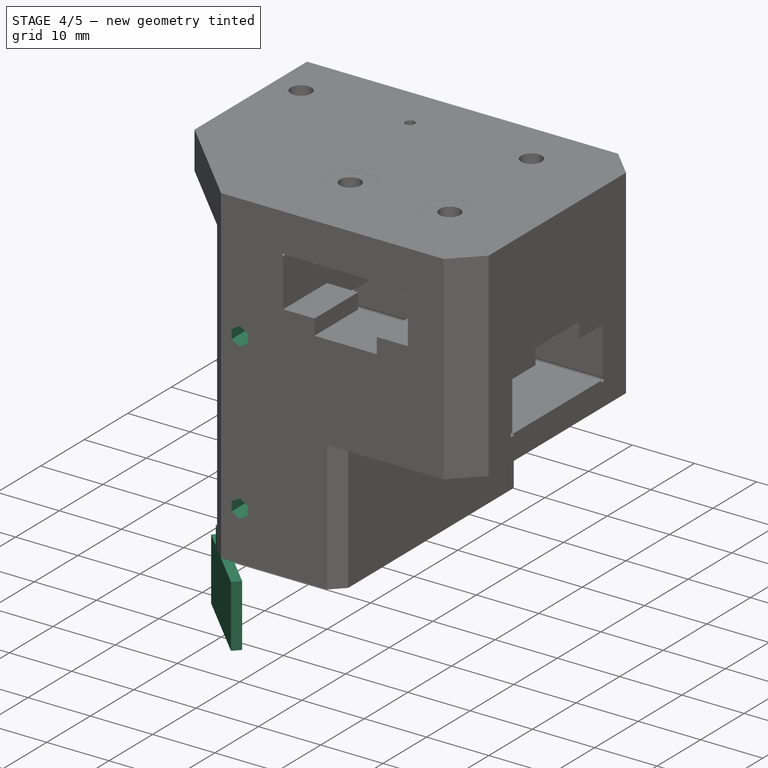
[diagram: stage 4 of 5 — iso view after this stage's code; geometry added in this stage tinted green]
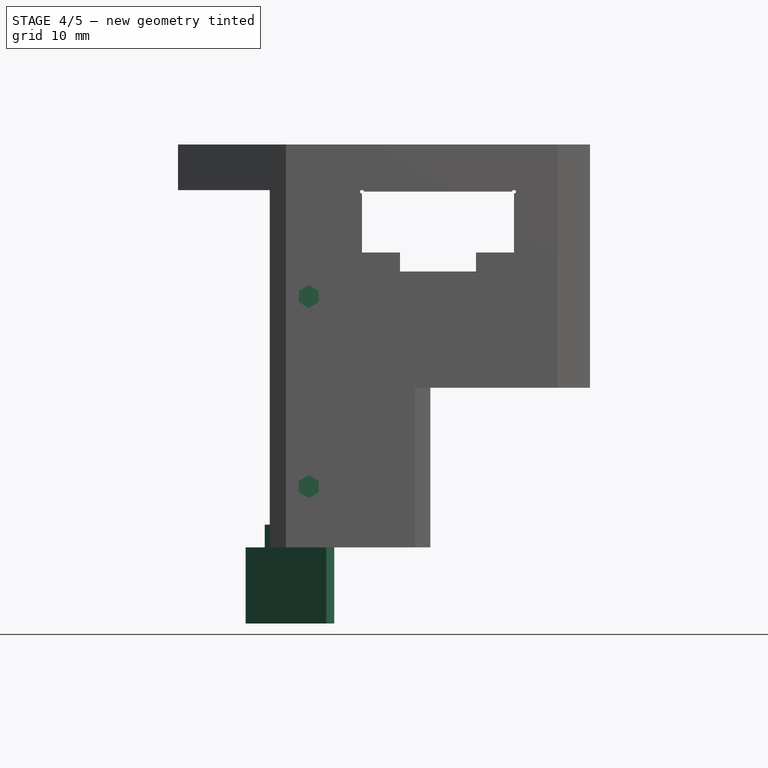
[diagram: stage 4 of 5 — front view after this stage's code; geometry added in this stage tinted green]
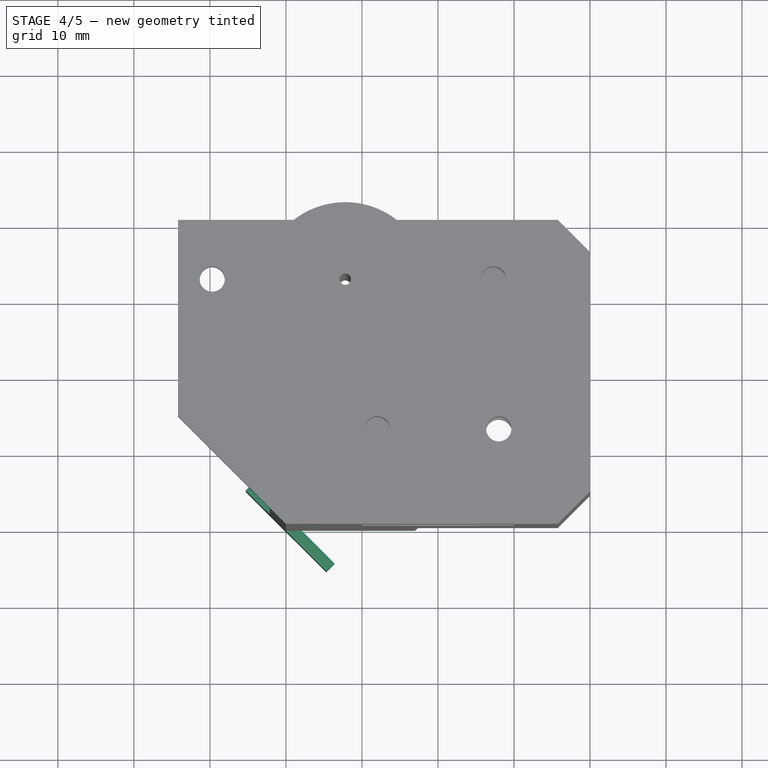
[diagram: stage 4 of 5 — top view after this stage's code; geometry added in this stage tinted green]
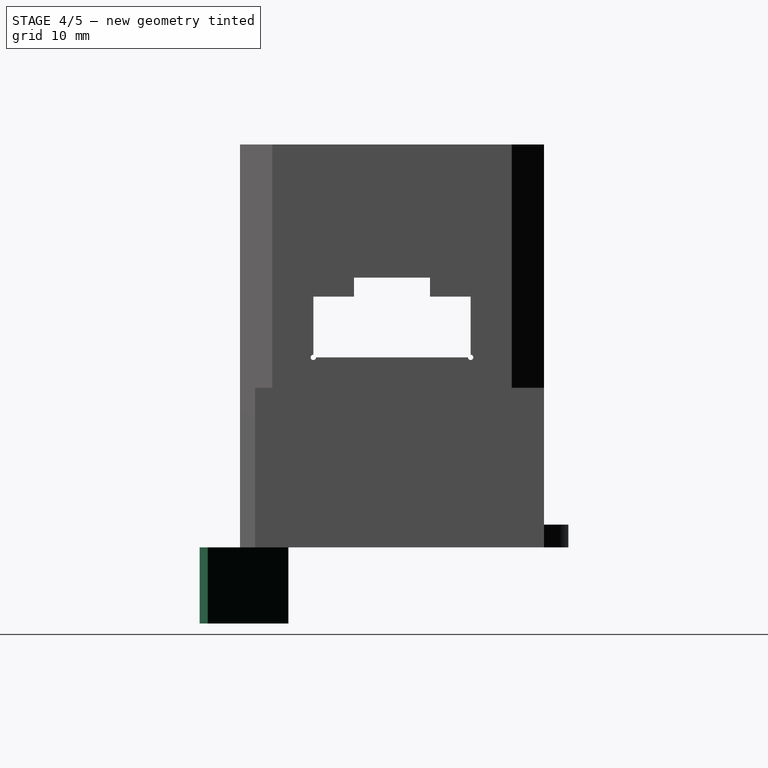
[diagram: stage 4 of 5 — right view after this stage's code; geometry added in this stage tinted green]
FEATURE [PartDesign::Pocket] Pocket013
  BaseFeature = -> Pocket012
  Length = 5
  Length2 = 100
  Profile = -> Sketch033
  Type = 0
FEATURE [PartDesign::Pad] Pad002
  BaseFeature = -> Pocket013
  Direction = (1,1,1)
  Length = 3
  Length2 = 100
  Profile = -> Sketch035
  Reversed = true
  Type = 0
FEATURE [PartDesign::Pocket] Pocket014
  BaseFeature = -> Pad002
  Length = 40
  Length2 = 100
  Profile = -> Sketch037
  Type = 0
FEATURE [PartDesign::Pad] Pad003
  BaseFeature = -> Pocket014
  Direction = (1,1,1)
  Length = 10
  Length2 = 100
  Profile = -> Sketch029
  Type = 0
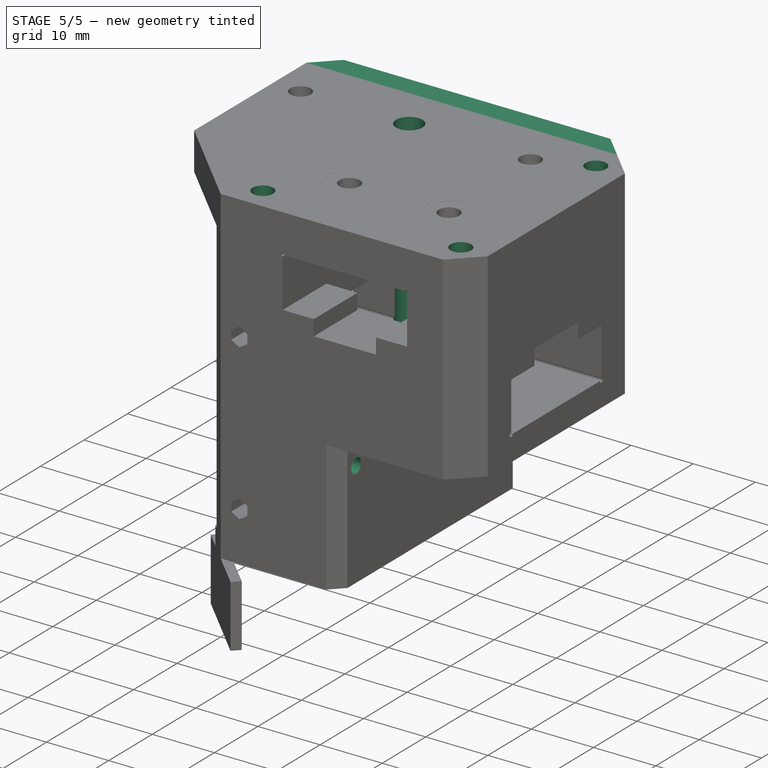
[diagram: stage 5 of 5 — iso view after this stage's code; geometry added in this stage tinted green]
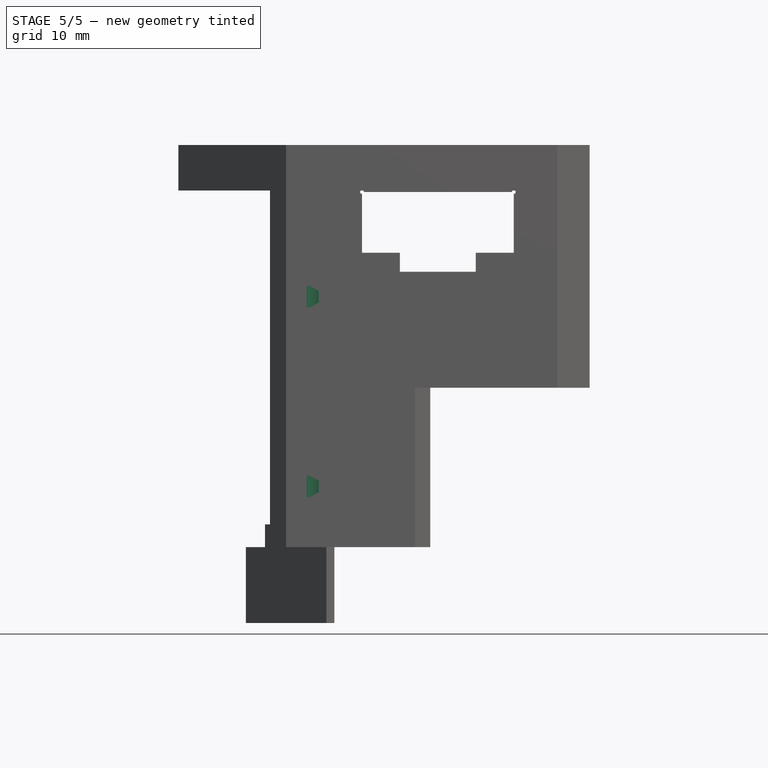
[diagram: stage 5 of 5 — front view after this stage's code; geometry added in this stage tinted green]
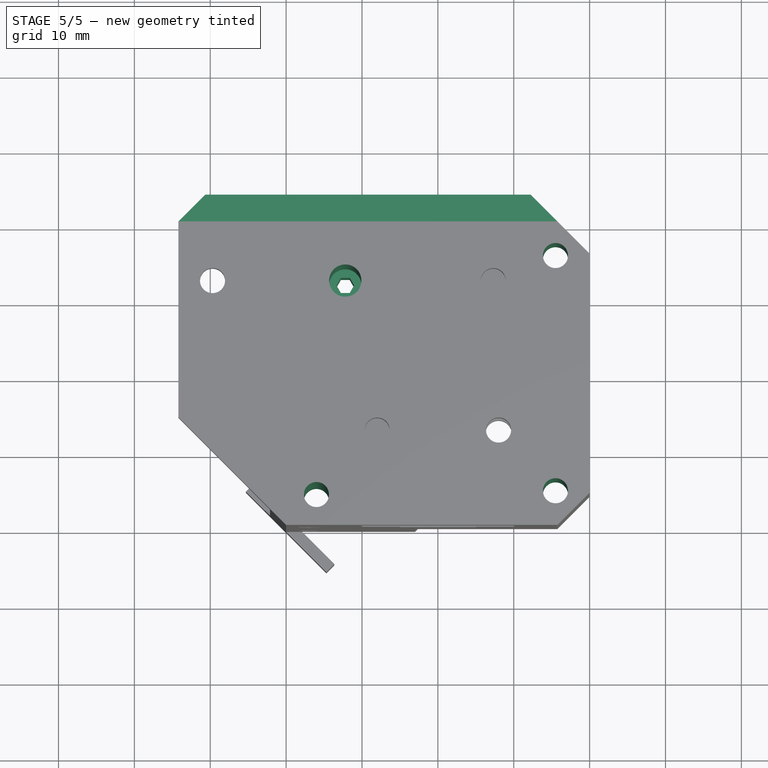
[diagram: stage 5 of 5 — top view after this stage's code; geometry added in this stage tinted green]
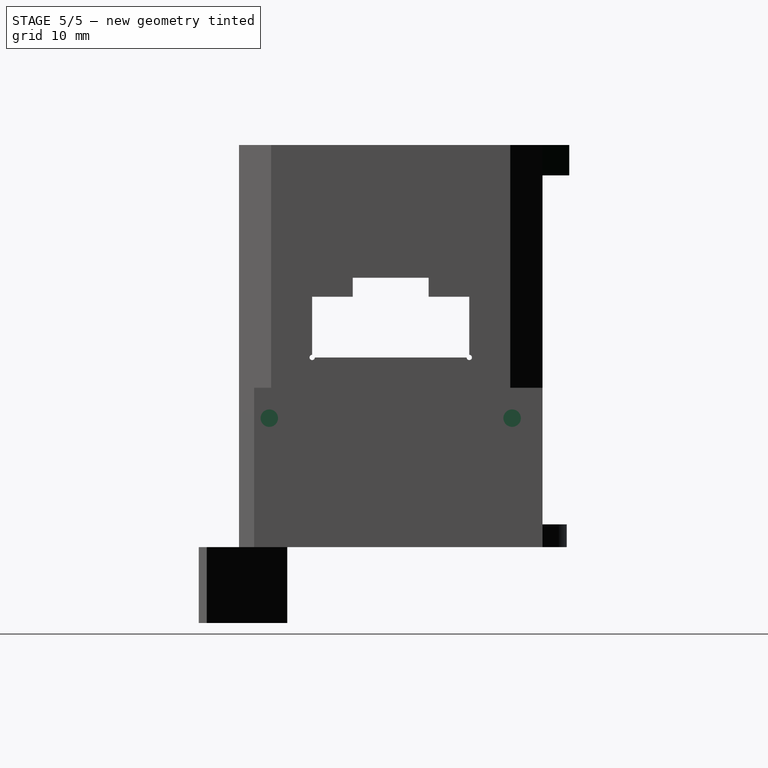
[diagram: stage 5 of 5 — right view after this stage's code; geometry added in this stage tinted green]
FEATURE [Sketcher::SketchObject] Sketch039  label="platformBump"
  ExternalGeometry = -> [Pad003]
  FullyConstrained = true
  MapMode = 5
  Support = -> [Pad003]
  sketch-geometry (4):
    g0: LineSegment StartX=-30.6621 StartY=23.5355 StartZ=0 EndX=12.2218 EndY=23.5355 EndZ=0
    g1: LineSegment StartX=12.2218 StartY=23.5355 StartZ=0 EndX=15.7574 EndY=20 EndZ=0
    g2: LineSegment StartX=15.7574 StartY=20 StartZ=0 EndX=-34.1976 EndY=20 EndZ=0
    g3: LineSegment StartX=-34.1976 StartY=20 StartZ=0 EndX=-30.6621 EndY=23.5355 EndZ=0
  constraints (10):
    c: Coincident(g0,g1)
    c: Coincident(g1,g2)
    c: Coincident(g2,g3)
    c: Coincident(g3,g0)
    c: Horizontal(g0)
    c: Distance(g1) = 5
    c: Coincident(g2,g-3)
    c: Coincident(g1,g-4)
    c: Angle(g1) = -0.785398
    c: Angle(g3) = 0.785398
FEATURE [PartDesign::Pad] Pad004
  BaseFeature = -> Pad003
  Direction = (1,1,1)
  Length = 4
  Length2 = 100
  Profile = -> Sketch039
  Reversed = true
  Type = 0
FEATURE [Sketcher::SketchObject] Sketch040  label="WireHoles"
  FullyConstrained = true
  MapMode = 5
  Support = -> [Pad004]
  sketch-geometry (21):
    g0: LineSegment StartX=16.0643 StartY=-17.0505 StartZ=0 EndX=17.1249 EndY=-15.7865 EndZ=0
    g1: LineSegment StartX=17.1249 StartY=-15.7865 StartZ=0 EndX=16.5606 EndY=-14.236 EndZ=0
    g2: LineSegment StartX=16.5606 StartY=-14.236 StartZ=0 EndX=14.9357 EndY=-13.9495 EndZ=0
    g3: LineSegment StartX=14.9357 StartY=-13.9495 StartZ=0 EndX=13.8751 EndY=-15.2135 EndZ=0
    g4: LineSegment StartX=13.8751 StartY=-15.2135 StartZ=0 EndX=14.4394 EndY=-16.764 EndZ=0
    g5: LineSegment StartX=14.4394 StartY=-16.764 StartZ=0 EndX=16.0643 EndY=-17.0505 EndZ=0
    g6: Circle CenterX=15.5 CenterY=-15.5 CenterZ=0 NormalX=0 NormalY=0 NormalZ=1 AngleXU=0 Radius=1.65
    g7: LineSegment StartX=15.0729 StartY=17.0938 StartZ=0 EndX=13.9062 EndY=15.9271 EndZ=0
    g8: LineSegment StartX=13.9062 StartY=15.9271 StartZ=0 EndX=14.3333 EndY=14.3333 EndZ=0
    g9: LineSegment StartX=14.3333 StartY=14.3333 StartZ=0 EndX=15.9271 EndY=13.9062 EndZ=0
    g10: LineSegment StartX=15.9271 StartY=13.9062 StartZ=0 EndX=17.0938 EndY=15.0729 EndZ=0
    g11: LineSegment StartX=17.0938 StartY=15.0729 StartZ=0 EndX=16.6667 EndY=16.6667 EndZ=0
    g12: LineSegment StartX=16.6667 StartY=16.6667 StartZ=0 EndX=15.0729 EndY=17.0938 EndZ=0
    g13: Circle CenterX=15.5 CenterY=15.5 CenterZ=0 NormalX=0 NormalY=0 NormalZ=1 AngleXU=0 Radius=1.65
    g14: LineSegment StartX=-14.8333 StartY=-17.1667 StartZ=0 EndX=-14.4062 EndY=-15.5729 EndZ=0
    g15: LineSegment StartX=-14.4062 StartY=-15.5729 StartZ=0 EndX=-15.5729 EndY=-14.4062 EndZ=0
    g16: LineSegment StartX=-15.5729 StartY=-14.4062 StartZ=0 EndX=-17.1667 EndY=-14.8333 EndZ=0
    g17: LineSegment StartX=-17.1667 StartY=-14.8333 StartZ=0 EndX=-17.5938 EndY=-16.4271 EndZ=0
    g18: LineSegment StartX=-17.5938 StartY=-16.4271 StartZ=0 EndX=-16.4271 EndY=-17.5938 EndZ=0
    g19: LineSegment StartX=-16.4271 StartY=-17.5938 StartZ=0 EndX=-14.8333 EndY=-17.1667 EndZ=0
    g20: Circle CenterX=-16 CenterY=-16 CenterZ=0 NormalX=0 NormalY=0 NormalZ=1 AngleXU=0 Radius=1.65
  constraints (51):
    c: Coincident(g0,g1)
    c: Coincident(g1,g2)
    c: Coincident(g2,g3)
    c: Coincident(g3,g4)
    c: Coincident(g4,g5)
    c: Coincident(g5,g0)
    c: Equal(g0, g1-g5) x5
    c: PointOnObject(g0,g6)
    c: PointOnObject(g1,g6)
    c: PointOnObject(g2,g6)
    c: PointOnObject(g3,g6)
    c: PointOnObject(g4,g6)
    c: PointOnObject(g5,g6)
    c: Coincident(g7,g8)
    c: Coincident(g8,g9)
    c: Coincident(g9,g10)
    c: Coincident(g10,g11)
    c: Coincident(g11,g12)
    c: Coincident(g12,g7)
    c: Equal(g7, g8-g12) x5
    c: PointOnObject(g7,g13)
    c: PointOnObject(g8,g13)
    c: PointOnObject(g9,g13)
    c: PointOnObject(g10,g13)
    c: PointOnObject(g11,g13)
    c: PointOnObject(g12,g13)
    c: DistanceX(g13) = 15.5
    c: DistanceY(g13) = 15.5
    c: DistanceX(g6) = 15.5
    c: DistanceY(g6) = -15.5
    c: Coincident(g14,g15)
    c: Coincident(g15,g16)
    c: Coincident(g16,g17)
    c: Coincident(g17,g18)
    c: Coincident(g18,g19)
    c: Coincident(g19,g14)
    c: Equal(g14, g15-g19) x5
    c: PointOnObject(g14,g20)
    c: PointOnObject(g15,g20)
    c: PointOnObject(g16,g20)
    c: PointOnObject(g17,g20)
    c: PointOnObject(g18,g20)
    c: PointOnObject(g19,g20)
    c: Angle(g15) = 2.35619
    c: DistanceX(g20) = -16
    c: DistanceY(g20) = -16
    c: Angle(g3) = -2.26893
    c: Angle(g11) = 1.8326
    c: Diameter(g20) = 3.3
    c: Diameter(g6) = 3.3
    c: Diameter(g13) = 3.3
FEATURE [PartDesign::Pocket] Pocket015
  BaseFeature = -> Pad004
  Length = 5
  Length2 = 100
  Profile = -> Sketch040
  Type = 1
FEATURE [Sketcher::SketchObject] Sketch041  label="PCBmountholes"
  FullyConstrained = true
  MapMode = 5
  Placement = pos=(-1.00001,-3.26797e-07,0) rot=(0.57735,0.57735,0.57735;2.0944rad)
  Support = -> [Pocket015]
  sketch-geometry (2):
    g0: Circle CenterX=16 CenterY=-36 CenterZ=0 NormalX=0 NormalY=0 NormalZ=1 AngleXU=0 Radius=1.15
    g1: Circle CenterX=-16 CenterY=-36 CenterZ=0 NormalX=0 NormalY=0 NormalZ=1 AngleXU=0 Radius=1.15
  constraints (5):
    c: Distance(g0,g1) = 32
    c: Symmetric(g1,g0,g-2)
    c: Diameter(g0) = 2.3
    c: Equal(g0,g1)
    c: DistanceY(g1) = -36
FEATURE [Sketcher::SketchObject] Sketch044  label="TopRemove"
  FullyConstrained = false
  MapMode = 5
  Placement = pos=(0,0,0) rot=(1,0,0;1.5708rad)
  Support = -> [XZ_Plane]
  sketch-geometry (4):
    g0: LineSegment StartX=-45.3972 StartY=21.8954 StartZ=0 EndX=42.0722 EndY=21.8954 EndZ=0
    g1: LineSegment StartX=42.0722 StartY=21.8954 StartZ=0 EndX=42.0722 EndY=-15 EndZ=0
    g2: LineSegment StartX=42.0722 StartY=-15 StartZ=0 EndX=-45.3972 EndY=-15 EndZ=0
    g3: LineSegment StartX=-45.3972 StartY=-15 StartZ=0 EndX=-45.3972 EndY=21.8954 EndZ=0
  constraints (9):
    c: Coincident(g0,g1)
    c: Coincident(g1,g2)
    c: Coincident(g2,g3)
    c: Coincident(g3,g0)
    c: Horizontal(g0)
    c: Horizontal(g2)
    c: Vertical(g1)
    c: Vertical(g3)
    c: DistanceY(g1) = -15
FEATURE [Sketcher::SketchObject] Sketch045  label="BottomRemove"
  FullyConstrained = false
  MapMode = 5
  Placement = pos=(0,0,0) rot=(1,0,0;1.5708rad)
  Support = -> [XZ_Plane]
  sketch-geometry (4):
    g0: LineSegment StartX=-38.3617 StartY=-27 StartZ=0 EndX=54.8079 EndY=-27 EndZ=0
    g1: LineSegment StartX=54.8079 StartY=-27 StartZ=0 EndX=54.8079 EndY=-80.7262 EndZ=0
    g2: LineSegment StartX=54.8079 StartY=-80.7262 StartZ=0 EndX=-38.3617 EndY=-80.7262 EndZ=0
    g3: LineSegment StartX=-38.3617 StartY=-80.7262 StartZ=0 EndX=-38.3617 EndY=-27 EndZ=0
  constraints (9):
    c: Coincident(g0,g1)
    c: Coincident(g1,g2)
    c: Coincident(g2,g3)
    c: Coincident(g3,g0)
    c: Horizontal(g0)
    c: Horizontal(g2)
    c: Vertical(g1)
    c: Vertical(g3)
    c: DistanceY(g0) = -27
FEATURE [Sketcher::SketchObject] Sketch046  label="TopGenerate"
  FullyConstrained = false
  MapMode = 5
  Placement = pos=(0,0,0) rot=(1,0,0;1.5708rad)
  Support = -> [XZ_Plane]
  sketch-geometry (4):
    g0: LineSegment StartX=-60.5158 StartY=-14 StartZ=0 EndX=76.9183 EndY=-14 EndZ=0
    g1: LineSegment StartX=76.9183 StartY=-14 StartZ=0 EndX=76.9183 EndY=-93.5801 EndZ=0
    g2: LineSegment StartX=76.9183 StartY=-93.5801 StartZ=0 EndX=-60.5158 EndY=-93.5801 EndZ=0
    g3: LineSegment StartX=-60.5158 StartY=-93.5801 StartZ=0 EndX=-60.5158 EndY=-14 EndZ=0
  constraints (9):
    c: Coincident(g0,g1)
    c: Coincident(g1,g2)
    c: Coincident(g2,g3)
    c: Coincident(g3,g0)
    c: Horizontal(g0)
    c: Horizontal(g2)
    c: Vertical(g1)
    c: Vertical(g3)
    c: DistanceY(g0) = -14
FEATURE [Sketcher::SketchObject] Sketch047  label="BottomGenerat"
  FullyConstrained = false
  MapMode = 5
  Placement = pos=(0,0,0) rot=(1,0,0;1.5708rad)
  Support = -> [XZ_Plane]
  sketch-geometry (4):
    g0: LineSegment StartX=-59.346 StartY=15.5453 StartZ=0 EndX=56.3978 EndY=15.5453 EndZ=0
    g1: LineSegment StartX=56.3978 StartY=15.5453 StartZ=0 EndX=56.3978 EndY=-28 EndZ=0
    g2: LineSegment StartX=56.3978 StartY=-28 StartZ=0 EndX=-59.346 EndY=-28 EndZ=0
    g3: LineSegment StartX=-59.346 StartY=-28 StartZ=0 EndX=-59.346 EndY=15.5453 EndZ=0
  constraints (9):
    c: Coincident(g0,g1)
    c: Coincident(g1,g2)
    c: Coincident(g2,g3)
    c: Coincident(g3,g0)
    c: Horizontal(g0)
    c: Horizontal(g2)
    c: Vertical(g1)
    c: Vertical(g3)
    c: DistanceY(g1) = -28
FEATURE [PartDesign::Pocket] Pocket016
  BaseFeature = -> Pocket015
  Length = 6
  Length2 = 100
  Profile = -> Sketch041
  Type = 0
FEATURE [Sketcher::SketchObject] Sketch042  label="FilamentBore"
  FullyConstrained = true
  MapMode = 5
  Placement = pos=(0,0,-53) rot=(1,0,0;3.14159rad)
  Support = -> [Pocket016]
  sketch-geometry (7):
    g0: LineSegment StartX=-13.3547 StartY=-12.2 StartZ=0 EndX=-12.7774 EndY=-13.2 EndZ=0
    g1: LineSegment StartX=-12.7774 StartY=-13.2 StartZ=0 EndX=-11.6226 EndY=-13.2 EndZ=0
    g2: LineSegment StartX=-11.6226 StartY=-13.2 StartZ=0 EndX=-11.0453 EndY=-12.2 EndZ=0
    g3: LineSegment StartX=-11.0453 StartY=-12.2 StartZ=0 EndX=-11.6226 EndY=-11.2 EndZ=0
    g4: LineSegment StartX=-11.6226 StartY=-11.2 StartZ=0 EndX=-12.7774 EndY=-11.2 EndZ=0
    g5: LineSegment StartX=-12.7774 StartY=-11.2 StartZ=0 EndX=-13.3547 EndY=-12.2 EndZ=0
    g6: Circle CenterX=-12.2 CenterY=-12.2 CenterZ=0 NormalX=0 NormalY=0 NormalZ=1 AngleXU=0 Radius=1.1547
  constraints (17):
    c: Coincident(g0,g1)
    c: Coincident(g1,g2)
    c: Coincident(g2,g3)
    c: Coincident(g3,g4)
    c: Coincident(g4,g5)
    c: Coincident(g5,g0)
    c: Equal(g0, g1-g5) x5
    c: PointOnObject(g0,g6)
    c: PointOnObject(g1,g6)
    c: PointOnObject(g2,g6)
    c: PointOnObject(g3,g6)
    c: PointOnObject(g4,g6)
    c: PointOnObject(g5,g6)
    c: DistanceX(g6) = -12.2
    c: DistanceY(g6) = -12.2
    c: Distance(g0,g4) = 2
    c: Angle(g1) = 0
FEATURE [PartDesign::Pocket] Pocket017
  BaseFeature = -> Pocket016
  Length = 5
  Length2 = 100
  Profile = -> Sketch042
  Type = 1
FEATURE [Sketcher::SketchObject] Sketch043  label="teflonBore"
  FullyConstrained = true
  MapMode = 5
  Support = -> [Pocket017]
  sketch-geometry (1):
    g0: Circle CenterX=-12.2 CenterY=12.2 CenterZ=0 NormalX=0 NormalY=0 NormalZ=1 AngleXU=0 Radius=2.125
  constraints (3):
    c: DistanceX(g0) = -12.2
    c: DistanceY(g0) = 12.2
    c: Diameter(g0) = 4.25
FEATURE [PartDesign::Pocket] Pocket018
  BaseFeature = -> Pocket017
  Length = 37
  Length2 = 100
  Profile = -> Sketch043
  Type = 0
FEATURE [PartDesign::Body] Body
  Group = -> [Sketch,Pad,Sketch001,Pocket,Sketch003,Sketch004,Sketch007,Sketch008,Sketch009,Sketch010,Sketch017,Sketch019,Sketch021,Pocket002,Sketch022,Sketch024,Sketch025,Sketch026,Pocket003,Pocket004,Pocket005,Pocket006,Pocket007,Pocket008,Pad001,Pocket009,Pocket010,Sketch029,Sketch033,Sketch035,Sketch036,Sketch037,Pocket011,Pocket012,Pocket013,Pad002,Pocket014,Pad003,Sketch039,Pad004,Sketch040,Pocket015,+10 more]
  Origin = -> Origin
  Placement = pos=(0,0,0) rot=(0.862856,-0.357407,0.357407;1.71777rad)
  Tip = -> Pocket018
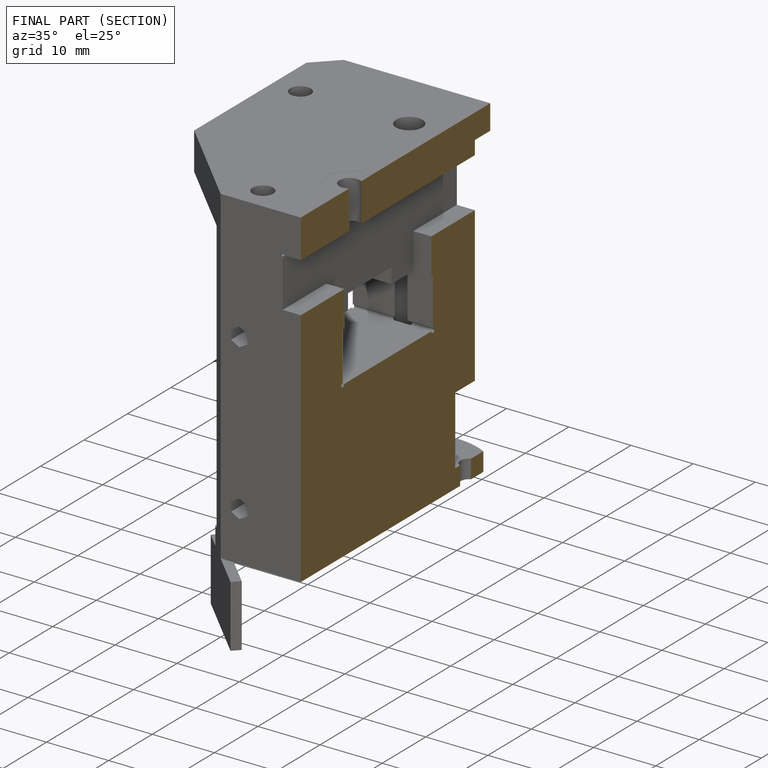
[diagram: finished part — half-section view (interior)]
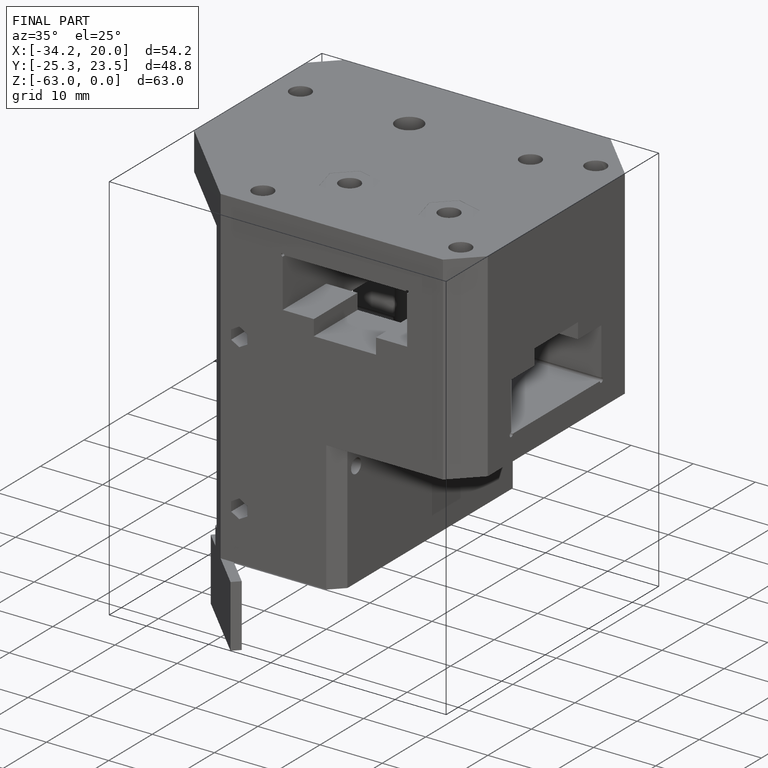
[diagram: finished part — iso view with bounding-box wireframe]
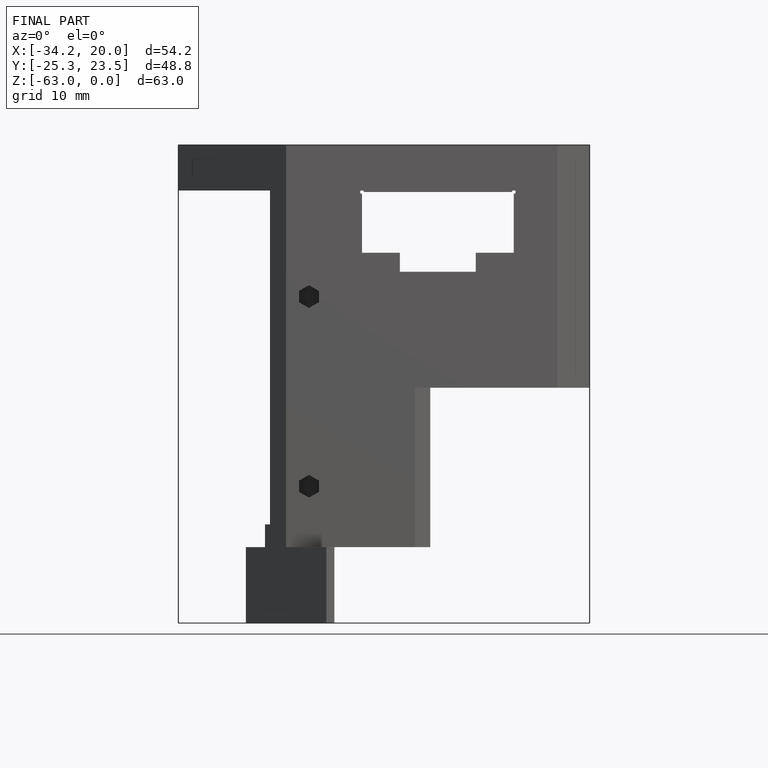
[diagram: finished part — front view with bounding-box wireframe]
